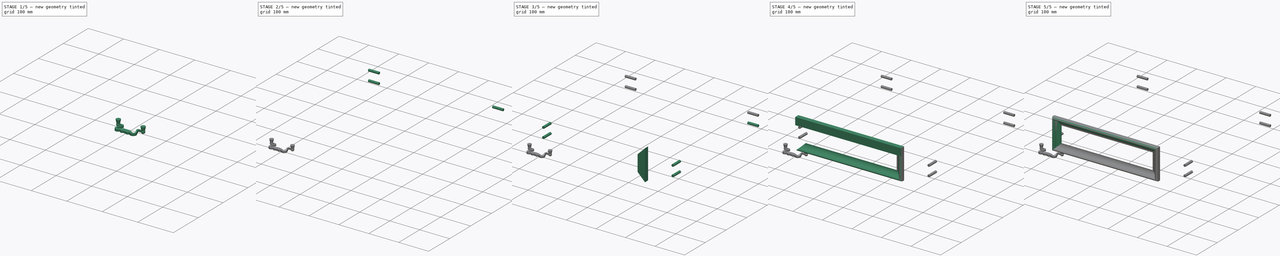
[diagram: build sequence overview — one tinted view per stage of 5, left to right]
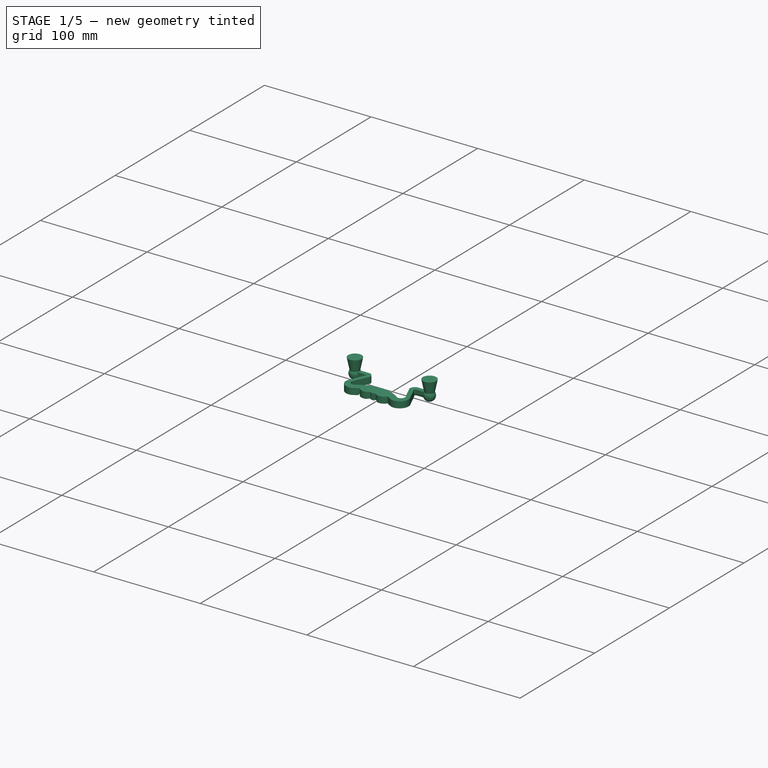
[diagram: stage 1 of 5 — iso view after this stage's code; geometry added in this stage tinted green]
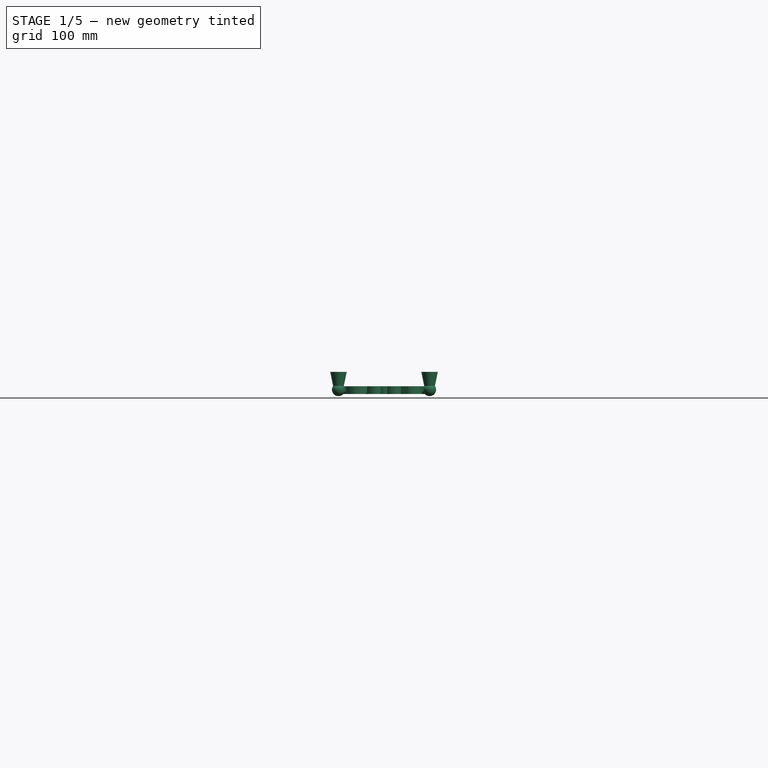
[diagram: stage 1 of 5 — front view after this stage's code; geometry added in this stage tinted green]
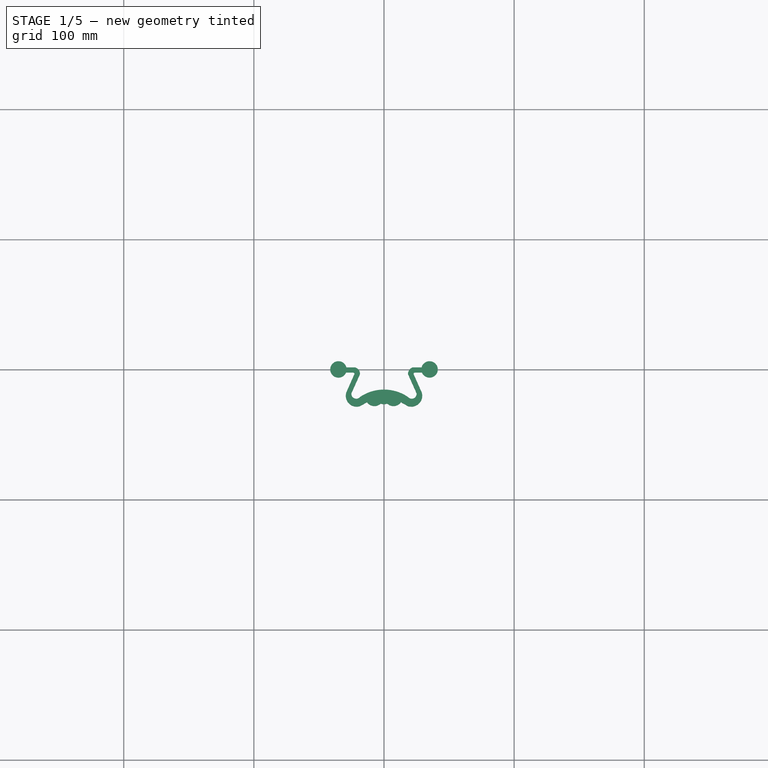
[diagram: stage 1 of 5 — top view after this stage's code; geometry added in this stage tinted green]
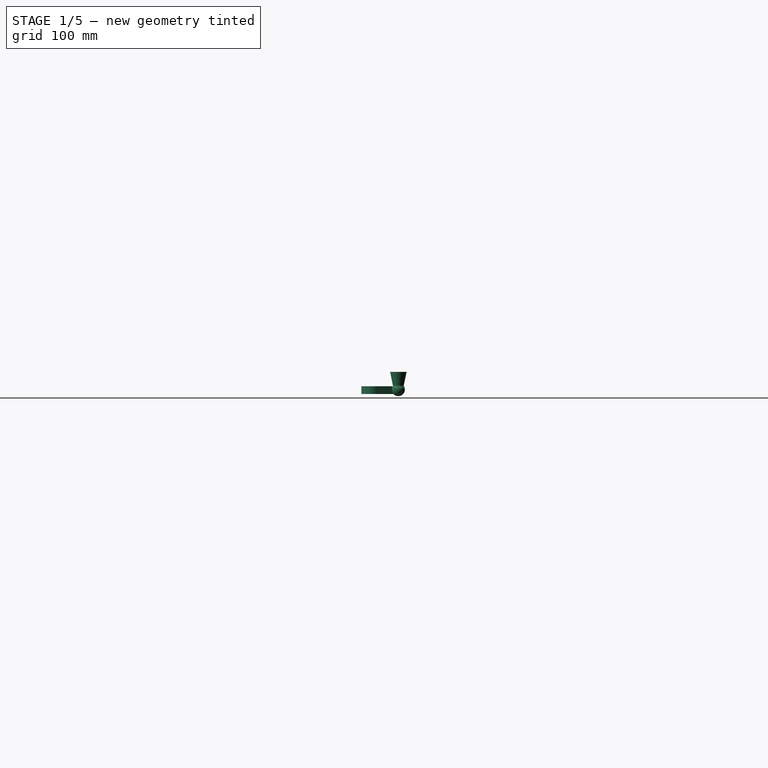
[diagram: stage 1 of 5 — right view after this stage's code; geometry added in this stage tinted green]
FCSTD DOCUMENT  (FreeCAD 1.1R20260325 (Git shallow))
Label: msf058
License: All rights reserved
LicenseURL: https://en.wikipedia.org/wiki/All_rights_reserved
objects: Sketcher::SketchObject×21, PartDesign::Pocket×15, App::Point×10, Part::Cylinder×8, Part::Box×5, PartDesign::Pad×5, PartDesign::Chamfer×5, PartDesign::Body×5, App::Part×5, App::LinkGroup×3, App::Link×3, Part::Cut×3, PartDesign::Mirrored×2, PartDesign::MultiTransform×2, PartDesign::Fillet×2, Spreadsheet::Sheet×1, PartDesign::Revolution×1
note: 155 computed .brp shape members not serialized (recipe doc carries the construction recipe); baked Part::Feature solids carry a one-line shape summary decoded from their .brp

FEATURE [Sketcher::SketchObject] Sketch
  ArcFitTolerance = 0
  ExternalTypes = [0]
  FullyConstrained = true
  MakeInternals = false
  MapMode = 5
  _ExternalGeoVersion = 0
  sketch-geometry (24):
    g0: LineSegment StartX=-32 StartY=1.78 StartZ=0 EndX=-32 EndY=-2.22 EndZ=0
    g1: LineSegment StartX=-32 StartY=-2.22 StartZ=0 EndX=-23.78 EndY=-2.22 EndZ=0
    g2: ArcOfCircle CenterX=-23.78 CenterY=-3.3 CenterZ=0 NormalX=0 NormalY=0 NormalZ=1 AngleXU=0 Radius=1.08 StartAngle=-1.8e-15 EndAngle=1.5708
    g3: LineSegment StartX=-22.7 StartY=-3.3 StartZ=0 EndX=-29 EndY=-17.5 EndZ=0
    g4: ArcOfCircle CenterX=-21 CenterY=-20 CenterZ=0 NormalX=0 NormalY=0 NormalZ=1 AngleXU=0 Radius=8.38153 StartAngle=2.83871 EndAngle=5.01527
    g5: LineSegment StartX=-18.5 StartY=-28 StartZ=0 EndX=-13 EndY=-24.9433 EndZ=0
    g6: ArcOfCircle CenterX=-7.3 CenterY=-21 CenterZ=0 NormalX=0 NormalY=0 NormalZ=1 AngleXU=0 Radius=6.93109 StartAngle=3.7468 EndAngle=5.47738
    g7: ArcOfCircle CenterX=9e-16 CenterY=-20 CenterZ=0 NormalX=0 NormalY=0 NormalZ=1 AngleXU=0 Radius=6.5 StartAngle=4.3176 EndAngle=5.10718
    g8: ArcOfCircle CenterX=7.3 CenterY=-21 CenterZ=0 NormalX=0 NormalY=0 NormalZ=1 AngleXU=0 Radius=6.93109 StartAngle=3.9474 EndAngle=5.67797
    g9: LineSegment StartX=13 StartY=-24.9433 StartZ=0 EndX=18.5 EndY=-28 EndZ=0
    g10: ArcOfCircle CenterX=21 CenterY=-20 CenterZ=0 NormalX=0 NormalY=0 NormalZ=1 AngleXU=0 Radius=8.38153 StartAngle=4.4095 EndAngle=6.58607
    g11: LineSegment StartX=29 StartY=-17.5 StartZ=0 EndX=22.7 EndY=-3.3 EndZ=0
    g12: ArcOfCircle CenterX=23.78 CenterY=-3.3 CenterZ=0 NormalX=0 NormalY=0 NormalZ=1 AngleXU=0 Radius=1.08 StartAngle=1.5708 EndAngle=3.14159
    g13: LineSegment StartX=23.78 StartY=-2.22 StartZ=0 EndX=32 EndY=-2.22 EndZ=0
    g14: LineSegment StartX=32 StartY=-2.22 StartZ=0 EndX=32 EndY=1.78 EndZ=0
    g15: LineSegment StartX=32 StartY=1.78 StartZ=0 EndX=22.1 EndY=1.78 EndZ=0
    g16: ArcOfCircle CenterX=23.78 CenterY=-3.3 CenterZ=0 NormalX=0 NormalY=0 NormalZ=1 AngleXU=0 Radius=5.35059 StartAngle=1.89018 EndAngle=3.14159
    g17: LineSegment StartX=18.4294 StartY=-3.3 StartZ=0 EndX=25 EndY=-18 EndZ=0
    g18: ArcOfCircle CenterX=21.3162 CenterY=-18.56 CenterZ=0 NormalX=0 NormalY=0 NormalZ=1 AngleXU=0 Radius=3.72617 StartAngle=3.85555 EndAngle=6.43405
    g19: ArcOfCircle CenterX=-2e-15 CenterY=-48 CenterZ=0 NormalX=0 NormalY=0 NormalZ=1 AngleXU=0 Radius=32.73 StartAngle=0.970083 EndAngle=2.17151
    g20: ArcOfCircle CenterX=-21.3162 CenterY=-18.56 CenterZ=0 NormalX=0 NormalY=0 NormalZ=1 AngleXU=0 Radius=3.72617 StartAngle=2.99073 EndAngle=5.56923
    g21: LineSegment StartX=-25 StartY=-18 StartZ=0 EndX=-18.4294 EndY=-3.3 EndZ=0
    g22: ArcOfCircle CenterX=-23.78 CenterY=-3.3 CenterZ=0 NormalX=0 NormalY=0 NormalZ=1 AngleXU=0 Radius=5.35059 StartAngle=0 EndAngle=1.25141
    g23: LineSegment StartX=-22.1 StartY=1.78 StartZ=0 EndX=-32 EndY=1.78 EndZ=0
  constraints (71):
    c: Vertical(g0)
    c: Coincident(g0,g1)
    c: Horizontal(g1)
    c: Coincident(g2,g1)
    c: Coincident(g3,g2)
    c: Coincident(g4,g3)
    c: Coincident(g5,g4)
    c: Coincident(g6,g5)
    c: Coincident(g7,g6)
    c: Coincident(g8,g7)
    c: Coincident(g9,g8)
    c: Coincident(g10,g9)
    c: Coincident(g11,g10)
    c: Coincident(g12,g11)
    c: Coincident(g13,g12)
    c: Horizontal(g13)
    c: Coincident(g14,g13)
    c: Vertical(g14)
    c: Coincident(g15,g14)
    c: Horizontal(g15)
    c: Coincident(g16,g15)
    c: Coincident(g17,g16)
    c: Coincident(g18,g17)
    c: Coincident(g19,g18)
    c: Coincident(g20,g19)
    c: Coincident(g21,g20)
    c: Coincident(g22,g21)
    c: Coincident(g23,g22)
    c: Coincident(g23,g0)
    c: Horizontal(g18,g19)
    c: Symmetric(g6,g8,g-2)
    c: Symmetric(g5,g8,g-2)
    c: Symmetric(g20,g17,g-2)
    c: Symmetric(g3,g10,g-2)
    c: Symmetric(g0,g14,g-2)
    c: Symmetric(g22,g15,g-2)
    c: Symmetric(g1,g12,g-2)
    c: Symmetric(g16,g21,g-2)
    c: Symmetric(g2,g11,g-2)
    c: Symmetric(g4,g9,g-2)
    c: Symmetric(g20,g18,g-2)
    c: DistanceX(g14) = 32
    c: DistanceX(g15,g15) = 9.9
    c: DistanceX(g-1,g9) = 18.5
    c: DistanceX(g6,g-1) = 2.5
    c: DistanceX(g6,g-1) = 7.3
    c: DistanceX(g5,g-1) = 13
    c: DistanceX(g19,g-1) = 18.5
    c: DistanceX(g3,g-1) = 29
    c: DistanceX(g20,g-1) = 25
    c: DistanceY(g7,g-1) = 26
    c: DistanceY(g7,g-1) = 20
    c: Horizontal(g7,g6)
    c: DistanceY(g6,g-1) = 21
    c: DistanceY(g4,g-1) = 20
    c: DistanceY(g20,g-1) = 18.56
    c: DistanceX(g4,g-1) = 21
    c: DistanceY(g10,g-1) = 17.5
    c: DistanceY(g17,g-1) = 18
    c: Horizontal(g10,g4)
    c: Coincident(g16,g12)
    c: Coincident(g22,g2)
    c: DistanceY(g2,g-1) = 3.3
    c: DistanceX(g2,g-1) = 23.78
    c: Vertical(g12,g12)
    c: Horizontal(g11,g12)
    c: DistanceY(g2,g1) = 1.08
    c: DistanceY(g14,g14) = 4
    c: Horizontal(g2,g21)
    c: DistanceY(g19,g-1) = 21
    c: DistanceY(g19,g-1) = 48
FEATURE [PartDesign::Pad] Pad
  Direction = (0,0,1)
  Length = 6
  Length2 = 10
  Profile = -> Sketch
  ReferenceAxis = -> Sketch [N_Axis]
  SideType = 0
  Suppressed = false
  Type = 0
  Type2 = 0
FEATURE [Sketcher::SketchObject] Sketch001
  ArcFitTolerance = 0
  AttachmentOffset = pos=(0,3,3) rot=(0,0,1;4.71239rad)
  ExternalTypes = [0]
  FullyConstrained = true
  MakeInternals = false
  MapMode = 5
  Placement = pos=(35,0,3) rot=(0,1,0;1.5708rad)
  _ExternalGeoVersion = 0
  sketch-geometry (4):
    g0: ArcOfCircle CenterX=-0.404329 CenterY=0 CenterZ=0 NormalX=0 NormalY=0 NormalZ=1 AngleXU=0 Radius=5.02433 StartAngle=4.10302 EndAngle=6.28319
    g1: LineSegment StartX=-3.28 StartY=-4.12 StartZ=0 EndX=-14.06 EndY=-6.34 EndZ=0
    g2: LineSegment StartX=-14.06 StartY=-6.34 StartZ=0 EndX=-14.06 EndY=0 EndZ=0
    g3: LineSegment StartX=-14.06 StartY=0 StartZ=0 EndX=4.62 EndY=-1.2e-15 EndZ=0
  constraints (13):
    c: PointOnObject(g0,g-1)
    c: Coincident(g1,g0)
    c: Coincident(g2,g1)
    c: PointOnObject(g2,g-1)
    c: Vertical(g2)
    c: Coincident(g3,g2)
    c: Coincident(g3,g0)
    c: DistanceY(g2,g2) = 6.34
    c: PointOnObject(g0,g3)
    c: DistanceX(g-1,g0) = 4.62
    c: DistanceX(g0,g-1) = 3.28
    c: DistanceY(g0,g-1) = 4.12
    c: DistanceX(g1,g-1) = 14.06
FEATURE [PartDesign::Revolution] Revolution
  Angle = 360
  Angle2 = 0
  Axis = (2e-16,0,-1)
  Base = (35,0,3)
  BaseFeature = -> Pad
  FuseOrder = 0
  Profile = -> Sketch001
  ReferenceAxis = -> Sketch001 [H_Axis]
  Reversed = true
  Suppressed = false
  Type = 0
FEATURE [PartDesign::Mirrored] Mirrored
  MirrorPlane = -> YZ_Plane001
  Suppressed = false
  TransformMode = 0
FEATURE [PartDesign::MultiTransform] MultiTransform
  BaseFeature = -> Revolution
  Originals = -> [Revolution]
  Suppressed = false
  TransformMode = 0
  Transformations = -> [Mirrored]
FEATURE [Sketcher::SketchObject] Sketch002
  ArcFitTolerance = 0
  ExternalTypes = [0]
  FullyConstrained = false
  MakeInternals = false
  MapMode = 5
  Placement = pos=(0,0,0) rot=(1,0,0;3.14159rad)
  _ExternalGeoVersion = 0
  sketch-geometry (6):
    g0: ArcOfCircle CenterX=8.37325 CenterY=23.2848 CenterZ=0 NormalX=0 NormalY=0 NormalZ=1 AngleXU=0 Radius=5.42921 StartAngle=4.33984 EndAngle=6.97405
    g1: ArcOfCircle CenterX=7.9611 CenterY=22.3638 CenterZ=0 NormalX=0 NormalY=0 NormalZ=1 AngleXU=0 Radius=4.42164 StartAngle=0.796764 EndAngle=4.35084
    g2: ArcOfCircle CenterX=8.91823 CenterY=22.7616 CenterZ=0 NormalX=0 NormalY=0 NormalZ=1 AngleXU=0 Radius=2.4556 StartAngle=0.183027 EndAngle=3.90789
    g3: ArcOfCircle CenterX=9.44753 CenterY=23.8657 CenterZ=0 NormalX=0 NormalY=0 NormalZ=1 AngleXU=0 Radius=3.62796 StartAngle=4.02624 EndAngle=7.06929
    g4: LineSegment StartX=11.3328 StartY=23.2085 StartZ=0 EndX=11.0519 EndY=25.5257 EndZ=0
    g5: LineSegment StartX=12.0111 StartY=26.4328 StartZ=0 EndX=12.5575 EndY=26.7442 EndZ=0
  constraints (6):
    c: Coincident(g1,g0)
    c: Coincident(g3,g2)
    c: Coincident(g4,g2)
    c: Coincident(g4,g1)
    c: Coincident(g5,g3)
    c: Coincident(g5,g0)
FEATURE [PartDesign::Pocket] Pocket
  BaseFeature = -> MultiTransform
  Direction = (0,1e-16,1)
  Length = 1
  Length2 = 5
  Profile = -> Sketch002
  ReferenceAxis = -> Sketch002 [N_Axis]
  SideType = 0
  Suppressed = false
  Type = 0
  Type2 = 0
FEATURE [Sketcher::SketchObject] Sketch003
  ArcFitTolerance = 0
  ExternalTypes = [0]
  FullyConstrained = false
  MakeInternals = false
  MapMode = 5
  Placement = pos=(0,0,0) rot=(1,0,0;3.14159rad)
  _ExternalGeoVersion = 0
  sketch-geometry (4):
    g0: ArcOfCircle CenterX=8.78863 CenterY=22.2095 CenterZ=0 NormalX=0 NormalY=0 NormalZ=1 AngleXU=0 Radius=6.37434 StartAngle=1.16895 EndAngle=5.27179
    g1: ArcOfCircle CenterX=8.78863 CenterY=22.2095 CenterZ=0 NormalX=0 NormalY=0 NormalZ=1 AngleXU=0 Radius=7.27003 StartAngle=1.46029 EndAngle=5.028
    g2: LineSegment StartX=9.59035 StartY=29.4352 StartZ=0 EndX=11.2818 EndY=28.0761 EndZ=0
    g3: LineSegment StartX=11.0452 StartY=15.2986 StartZ=0 EndX=12.1714 EndY=16.8068 EndZ=0
  constraints (5):
    c: Coincident(g2,g1)
    c: Coincident(g2,g0)
    c: Coincident(g3,g1)
    c: Coincident(g3,g0)
    c: Coincident(g0,g1)
FEATURE [PartDesign::Pocket] Pocket001
  BaseFeature = -> Pocket
  Direction = (0,1e-16,1)
  Length = 1
  Length2 = 5
  Profile = -> Sketch003
  ReferenceAxis = -> Sketch003 [N_Axis]
  SideType = 0
  Suppressed = false
  Type = 0
  Type2 = 0
FEATURE [Sketcher::SketchObject] Sketch004
  ArcFitTolerance = 0
  ExternalTypes = [0]
  FullyConstrained = false
  MakeInternals = false
  MapMode = 5
  Placement = pos=(0,0,0) rot=(1,0,0;3.14159rad)
  _ExternalGeoVersion = 0
  sketch-geometry (4):
    g0: LineSegment StartX=3.03254 StartY=13.6466 StartZ=0 EndX=0 EndY=19.9742 EndZ=0
    g1: LineSegment StartX=2.14295 StartY=13.4233 StartZ=0 EndX=0 EndY=18.4771 EndZ=0
    g2: LineSegment StartX=0 StartY=19.9742 StartZ=0 EndX=0 EndY=18.4771 EndZ=0
    g3: LineSegment StartX=2.14295 StartY=13.4233 StartZ=0 EndX=3.03254 EndY=13.6466 EndZ=0
  constraints (6):
    c: PointOnObject(g0,g-2)
    c: PointOnObject(g1,g-2)
    c: Coincident(g2,g0)
    c: Coincident(g2,g1)
    c: Coincident(g3,g1)
    c: Coincident(g3,g0)
FEATURE [PartDesign::Pocket] Pocket002
  BaseFeature = -> Pocket001
  Direction = (0,1e-16,1)
  Length = 1
  Length2 = 5
  Profile = -> Sketch004
  ReferenceAxis = -> Sketch004 [N_Axis]
  SideType = 0
  Suppressed = false
  Type = 0
  Type2 = 0
FEATURE [PartDesign::Mirrored] Mirrored001
  MirrorPlane = -> YZ_Plane001
  Suppressed = false
  TransformMode = 0
FEATURE [PartDesign::MultiTransform] MultiTransform001
  BaseFeature = -> Pocket002
  Originals = -> [Pocket,Pocket001,Pocket002]
  Suppressed = false
  TransformMode = 0
  Transformations = -> [Mirrored001]
FEATURE [PartDesign::Fillet] Fillet
  Base = -> MultiTransform001 [Edge104,Edge17,Edge4,Edge98]
  BaseFeature = -> MultiTransform001
  Radius = 3
  SupportTransform = false
  Suppressed = false
  UseAllEdges = false
FEATURE [PartDesign::Chamfer] Chamfer
  Angle = 45
  Base = -> Fillet [Edge101,Edge15,Edge129,Edge135,Edge143,Edge140,Edge132,Edge131]
  BaseFeature = -> Fillet
  ChamferType = 0
  FlipDirection = false
  Size = 0.8
  Size2 = 1
  SupportTransform = false
  Suppressed = false
  UseAllEdges = false
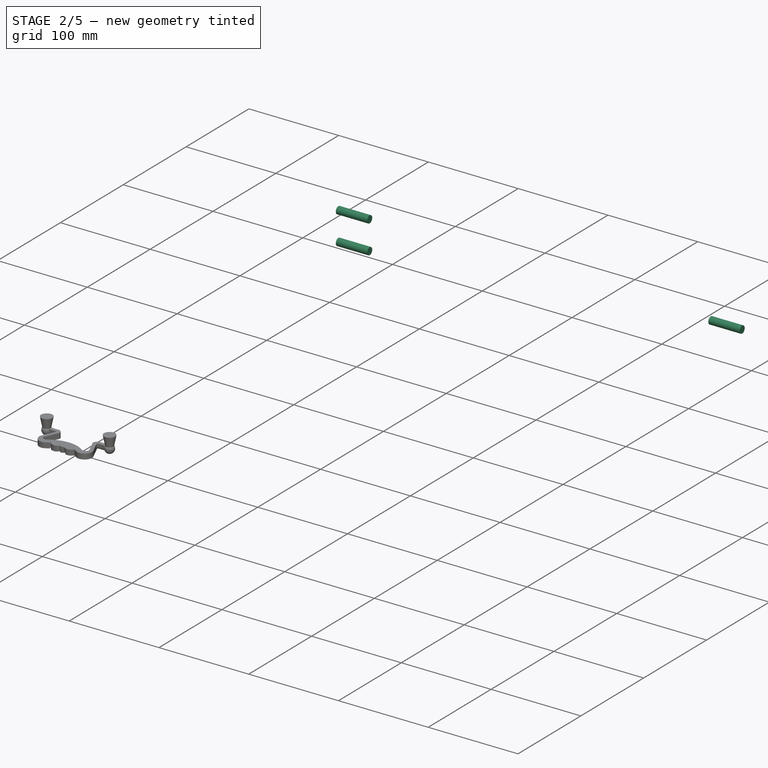
[diagram: stage 2 of 5 — iso view after this stage's code; geometry added in this stage tinted green]
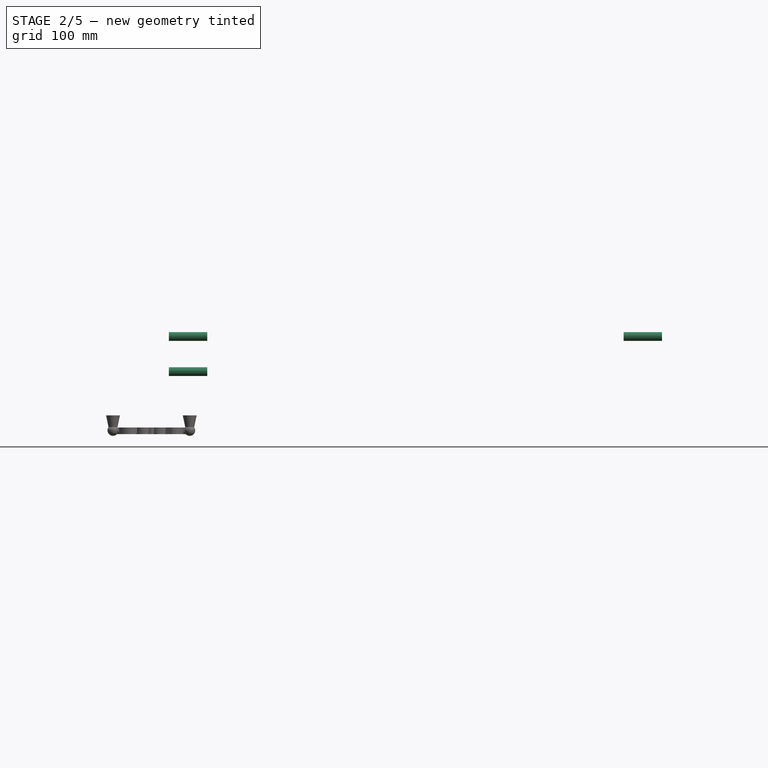
[diagram: stage 2 of 5 — front view after this stage's code; geometry added in this stage tinted green]
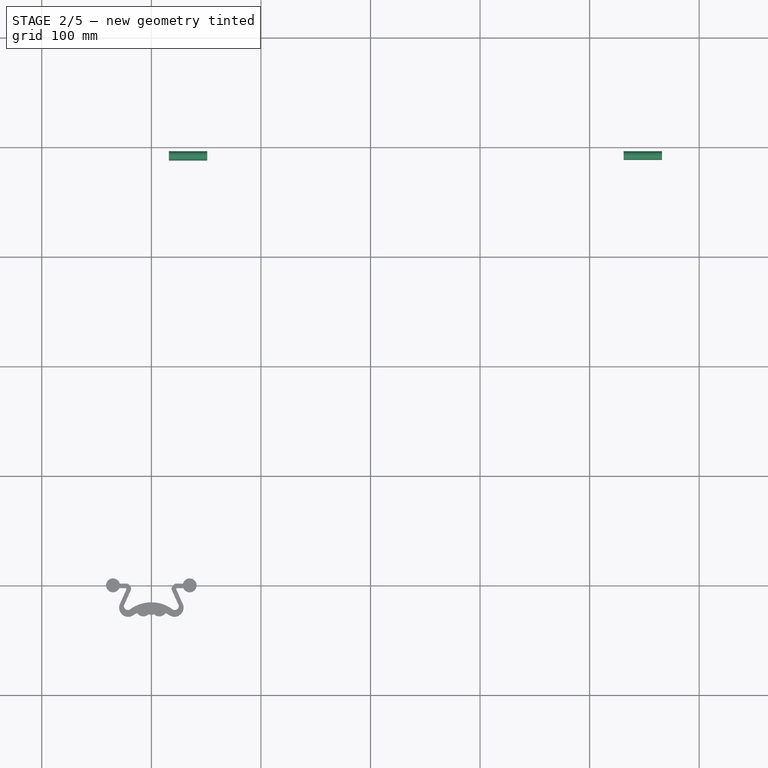
[diagram: stage 2 of 5 — top view after this stage's code; geometry added in this stage tinted green]
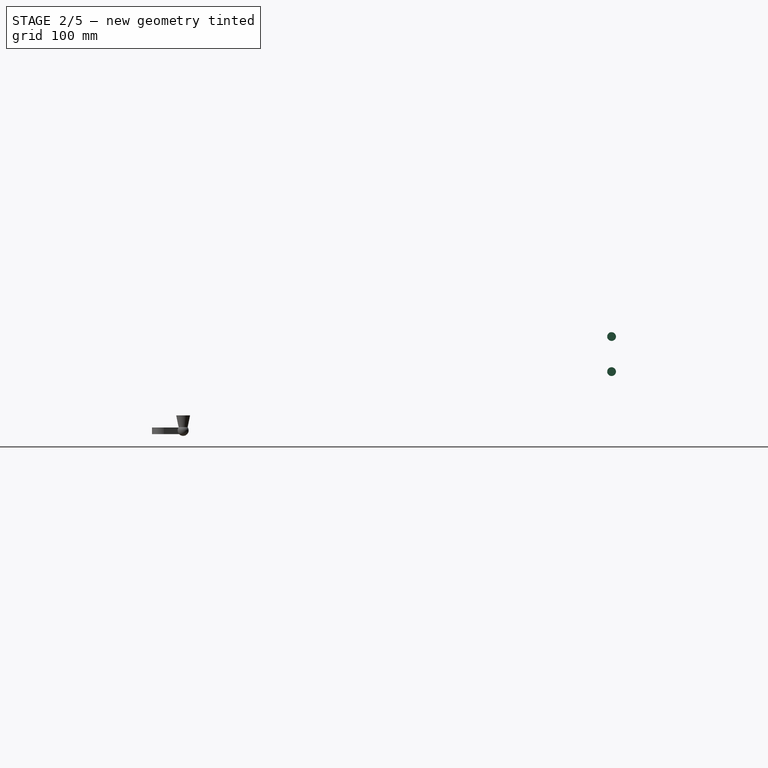
[diagram: stage 2 of 5 — right view after this stage's code; geometry added in this stage tinted green]
FEATURE [Part::Box] DrawerLeft  label="Drawer Left"
  AttacherType = Attacher::AttachEngine3D
  Height = 107
  Length = 18
  Placement = pos=(13,0,13) rot=(0,0,1;0rad)
  Width = 400
  expr: Width = <<settings>>.sizeY
FEATURE [Part::Box] DrawerBack  label="Drawer Back"
  AttacherType = Attacher::AttachEngine3D
  Height = 107
  Length = 420
  Placement = pos=(31,382,13) rot=(0,0,1;0rad)
  Width = 18
  expr: .Placement.Base.y = DrawerLeft.Shape.Faces[3].CenterOfMass.y - 18
  expr: Length = DrawerFrontOutside.Shape.Edges[11].Length - 80
FEATURE [Part::Box] DrawerBottom  label="Drawer Bottom HDF"
  AttacherType = Attacher::AttachEngine3D
  Height = 3
  Length = 438
  Placement = pos=(22,0,22) rot=(0,0,1;0rad)
  Width = 391
  expr: Length = DrawerFrontOutside.Shape.Edges[9].Length - 62
  expr: Width = DrawerLeft.Shape.Edges[5].Length - 9
FEATURE [Part::Box] DrawerFrontOutside  label="Drawer Front Outside"
  AttacherType = Attacher::AttachEngine3D
  Height = 164
  Length = 500
  Placement = pos=(-9,-18,-7) rot=(0,0,1;0rad)
  Width = 18
  expr: Length = <<settings>>.sizeX
FEATURE [App::Link] Link001  label="Knife, Drawer Bottom HDF 001"
  BOM = false
  LinkedObject = -> LinkGroup002
FEATURE [Part::Cut] Cut001  label="Cut, Drawer Back "
  Base = -> DrawerBack
  Tool = -> Link001
FEATURE [Part::Cylinder] Dowel005  label="Dowel 8 x 35 mm 005"
  Angle = 360
  AttacherType = Attacher::AttachEngine3D
  FirstAngle = 0
  Height = 35
  Placement = pos=(431,391,89) rot=(0,1,0;1.5708rad)
  Radius = 4
  SecondAngle = 0
  expr: .Placement.Base.x = DrawerBack.Shape.Faces[1].CenterOfMass.x - 20
  expr: .Placement.Base.y = DrawerBack.Shape.Faces[1].CenterOfMass.y - 0
  expr: .Placement.Base.z = DrawerBack.Shape.Faces[1].CenterOfMass.z + 22.5
FEATURE [Part::Cylinder] Dowel006  label="Dowel 8 x 35 mm 006"
  Angle = 360
  AttacherType = Attacher::AttachEngine3D
  FirstAngle = 0
  Height = 35
  Placement = pos=(51,391,57) rot=(0,-1,0;1.5708rad)
  Radius = 4
  SecondAngle = 0
  expr: .Placement.Base.x = Cut001.Shape.Faces[0].CenterOfMass.x + 20
  expr: .Placement.Base.y = Cut001.Shape.Faces[0].CenterOfMass.y - 0.0639810426540066
  expr: .Placement.Base.z = Cut001.Shape.Faces[0].CenterOfMass.z - 10.1113744075829
FEATURE [Part::Cylinder] Dowel007  label="Dowel 8 x 35 mm 007"
  Angle = 360
  AttacherType = Attacher::AttachEngine3D
  FirstAngle = 0
  Height = 35
  Placement = pos=(51,391,89) rot=(0,-1,0;1.5708rad)
  Radius = 4
  SecondAngle = 0
  expr: .Placement.Base.x = Cut001.Shape.Faces[0].CenterOfMass.x + 20
  expr: .Placement.Base.y = Cut001.Shape.Faces[0].CenterOfMass.y - 0.0639810426540066
  expr: .Placement.Base.z = Cut001.Shape.Faces[0].CenterOfMass.z + 21.8886255924171
FEATURE [PartDesign::Fillet] Fillet001
  Base = -> Chamfer [Edge149,Edge12]
  BaseFeature = -> Chamfer
  Radius = 0.2
  SupportTransform = false
  Suppressed = false
  UseAllEdges = false
FEATURE [PartDesign::Body] Body
  AllowCompound = true
  Group = -> [Sketch,Pad,Sketch001,Revolution,MultiTransform,Mirrored,Sketch002,Pocket,Sketch003,Pocket001,Sketch004,Pocket002,MultiTransform001,Mirrored001,Fillet,Chamfer,Fillet001]
  Origin = -> Origin001
  Placement = pos=(241,-34.9822,76.0422) rot=(0,0.707107,0.707107;3.14159rad)
  Tip = -> Fillet001
FEATURE [App::Part] Part  label="Handle"
  Group = -> [Body]
  Origin = -> Origin
  expr: .Placement.Base.x = DrawerFrontOutside.Shape.Faces[2].CenterOfMass.x - 241
  expr: .Placement.Base.y = DrawerFrontOutside.Shape.Faces[2].CenterOfMass.y + 18
  expr: .Placement.Base.z = DrawerFrontOutside.Shape.Faces[2].CenterOfMass.z - 75
FEATURE [App::LinkGroup] LinkGroup  label="Drawer, link this"
  ElementList = -> [DrawerLeft,DrawerRight,DrawerBack,DrawerFrontOutside,Part001,Part002,Part003,Part004,LinkGroup002,Cut,Cut001,Cut002,Dowel,Dowel001,Dowel002,Dowel003,Dowel004,Dowel005,Dowel006,Dowel007,Part]
  LinkMode = 0
FEATURE [App::LinkGroup] LinkGroup001  label="Drawer, hide this"
  ElementList = -> [LinkGroup,Spreadsheet]
  LinkMode = 0
FEATURE [App::Point] Origin010  label="Origin"
  Role = Origin
FEATURE [App::Point] Origin011  label="Origin"
  Role = Origin
FEATURE [App::Point] Origin012  label="Origin"
  Role = Origin
FEATURE [App::Point] Origin013  label="Origin"
  Role = Origin
FEATURE [App::Point] Origin014  label="Origin"
  Role = Origin
FEATURE [App::Point] Origin015  label="Origin"
  Role = Origin
FEATURE [App::Point] Origin016  label="Origin"
  Role = Origin
FEATURE [App::Point] Origin017  label="Origin"
  Role = Origin
FEATURE [App::Point] Origin018  label="Origin"
  Role = Origin
FEATURE [App::Point] Origin019  label="Origin"
  Role = Origin
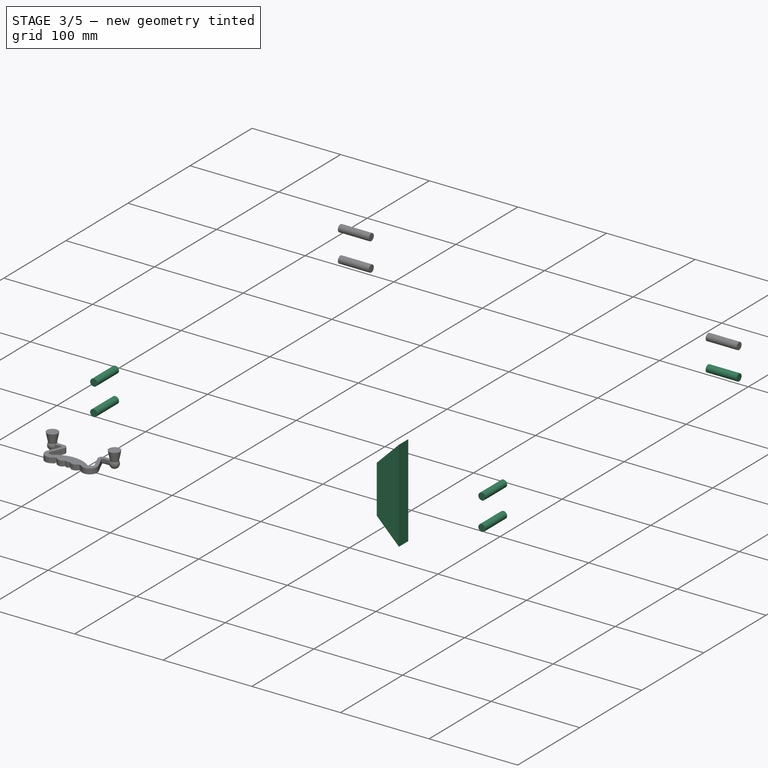
[diagram: stage 3 of 5 — iso view after this stage's code; geometry added in this stage tinted green]
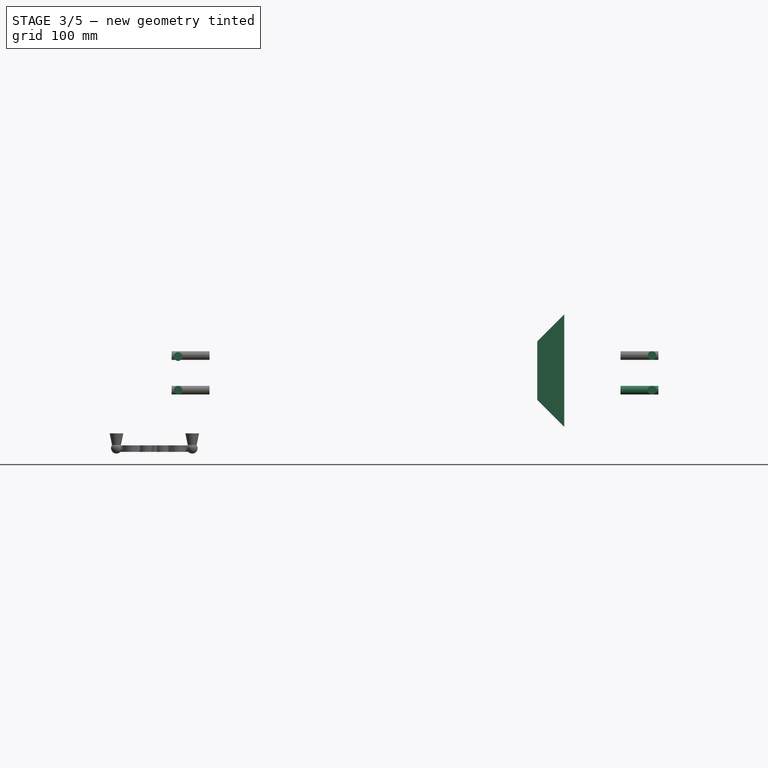
[diagram: stage 3 of 5 — front view after this stage's code; geometry added in this stage tinted green]
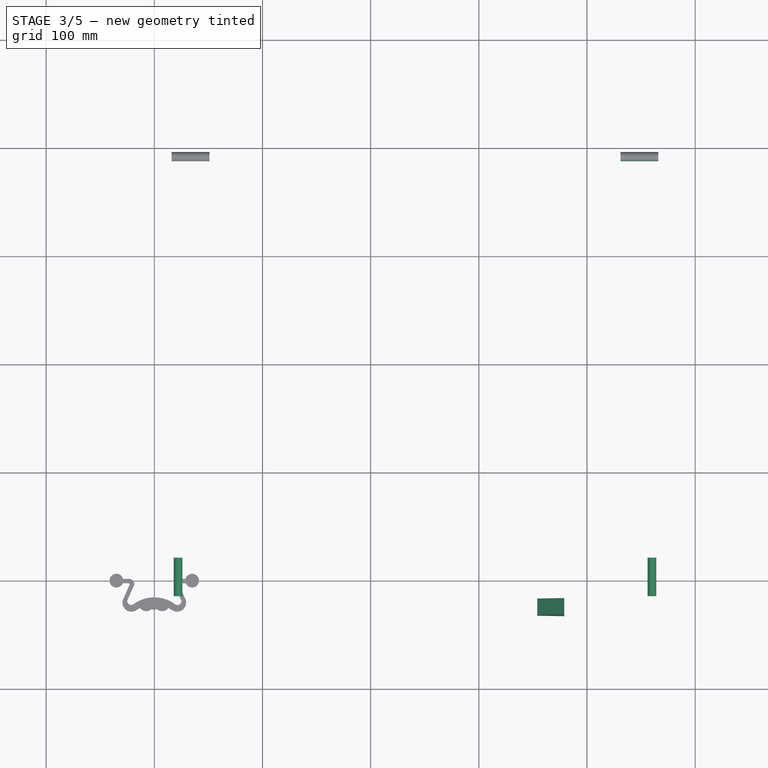
[diagram: stage 3 of 5 — top view after this stage's code; geometry added in this stage tinted green]
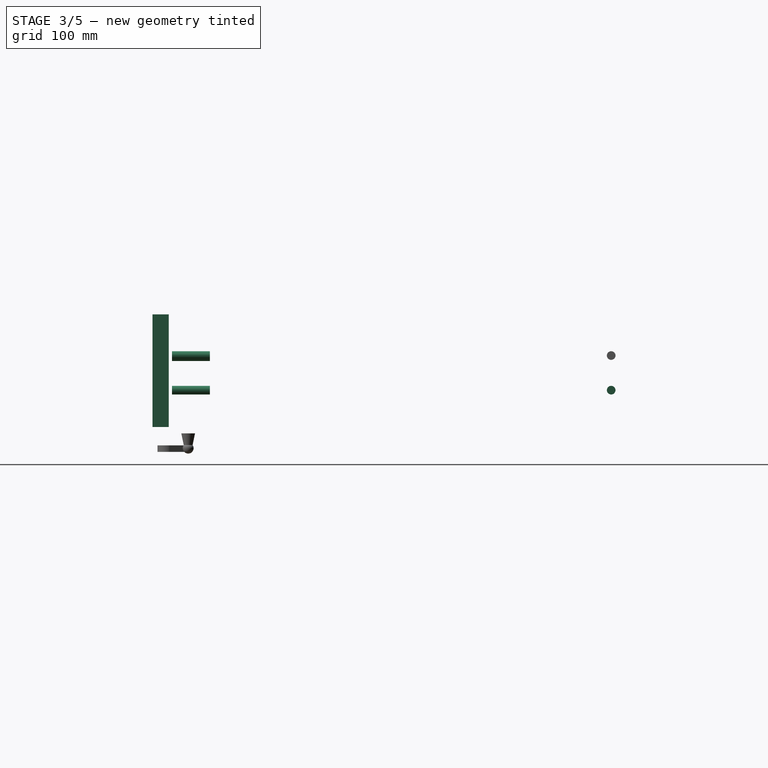
[diagram: stage 3 of 5 — right view after this stage's code; geometry added in this stage tinted green]
FEATURE [Part::Box] DrawerRight  label="Drawer Right"
  AttacherType = Attacher::AttachEngine3D
  Height = 107
  Length = 18
  Placement = pos=(451,0,13) rot=(0,0,1;0rad)
  Width = 400
  expr: .Placement.Base.x = DrawerBottom.Shape.Faces[1].CenterOfMass.x - 9
  expr: Width = DrawerLeft.Shape.Edges[5].Length - 0
FEATURE [Sketcher::SketchObject] Sketch007  label="Pattern, Frame002"
  ArcFitTolerance = 0
  AttachmentOffset = pos=(354,23,33) rot=(0,1,0;0rad)
  ExternalTypes = [0]
  FullyConstrained = true
  MakeInternals = false
  MapMode = 5
  Placement = pos=(354,-33,23) rot=(1,0,0;1.5708rad)
  _ExternalGeoVersion = 0
  sketch-geometry (4):
    g0: LineSegment StartX=0 StartY=104 StartZ=0 EndX=25 EndY=104 EndZ=0
    g1: LineSegment StartX=25 StartY=104 StartZ=0 EndX=25 EndY=0 EndZ=0
    g2: LineSegment StartX=25 StartY=0 StartZ=0 EndX=0 EndY=0 EndZ=0
    g3: LineSegment StartX=0 StartY=0 StartZ=0 EndX=0 EndY=104 EndZ=0
  constraints (11):
    c: Coincident(g0,g1)
    c: Coincident(g1,g2)
    c: Coincident(g2,g3)
    c: Coincident(g3,g0)
    c: Horizontal(g0)
    c: Horizontal(g2)
    c: Vertical(g1)
    c: Vertical(g3)
    c: Coincident(g2,g-1)
    c: DistanceX(g0,g0) = 25  'SizeX'
    c: DistanceY(g3,g3) = 104  'SizeY'
FEATURE [PartDesign::Pad] Pad003  label="Frame002"
  Direction = (0,-1,2e-16)
  Length = 15
  Length2 = 10
  Placement = pos=(354,-33,23) rot=(1,0,0;1.5708rad)
  Profile = -> Sketch007
  Reversed = true
  SideType = 0
  Suppressed = false
  Type = 0
  Type2 = 0
FEATURE [PartDesign::Chamfer] Frame45Cut002
  Angle = 45
  Base = -> Pad003 [Edge1,Edge8]
  BaseFeature = -> Pad003
  ChamferType = 0
  FlipDirection = false
  Placement = pos=(354,-33,23) rot=(1,0,0;1.5708rad)
  Size = 24.99
  Size2 = 1
  SupportTransform = false
  Suppressed = false
  UseAllEdges = false
FEATURE [PartDesign::Body] Body003  label="Body, Frame002"
  AllowCompound = true
  Group = -> [Sketch007,Pad003,Frame45Cut002,routerPattern003,router003,routerPattern007,router007,routerPattern011,router011]
  Origin = -> Origin007
  Tip = -> router011
FEATURE [App::Part] Part003  label="Decoration Right"
  Group = -> [Body003]
  Origin = -> Origin006
  Placement = pos=(41,0,0) rot=(0,0,1;0rad)
  expr: .Placement.Base.x = DrawerFrontOutside.Shape.Faces[2].CenterOfMass.x - 200
  expr: .Placement.Base.y = DrawerFrontOutside.Shape.Faces[2].CenterOfMass.y + 18
  expr: .Placement.Base.z = DrawerFrontOutside.Shape.Faces[2].CenterOfMass.z - 75
FEATURE [Spreadsheet::Sheet] Spreadsheet  label="settings"
  cells = A1='Settings; A2='Front width (size along X); B2(sizeX)=500; A3='Left side depth (size along Y); B3(sizeY)==400 mm; A5='Note; A6='Front width (size along X) is linked via magicGlue to drawer size X. 'Left side size (size along Y) is linked via magicGlue to drawer size Y. The bottom part of the drawer is inside LinkGroup container to get parametric cut, so if you move the bottom up and down the cut will follow the bottom position.
FEATURE [App::LinkGroup] LinkGroup002  label="Container, Drawer Bottom HDF "
  ElementList = -> [DrawerBottom]
  LinkMode = 0
FEATURE [App::Link] Link  label="Knife, Drawer Bottom HDF "
  BOM = false
  LinkedObject = -> LinkGroup002
FEATURE [Part::Cut] Cut  label="Cut, Drawer Left "
  Base = -> DrawerLeft
  Tool = -> Link
FEATURE [App::Link] Link002  label="Knife, Drawer Bottom HDF 002"
  BOM = false
  LinkedObject = -> LinkGroup002
FEATURE [Part::Cut] Cut002  label="Cut, Drawer Right "
  Base = -> DrawerRight
  Tool = -> Link002
FEATURE [Part::Cylinder] Dowel  label="Dowel 8 x 35 mm "
  Angle = 360
  AttacherType = Attacher::AttachEngine3D
  FirstAngle = 0
  Height = 35
  Placement = pos=(22,20,88) rot=(1,0,0;1.5708rad)
  Radius = 4
  SecondAngle = 0
  expr: .Placement.Base.x = Cut.Shape.Faces[1].CenterOfMass.x + 0.0639810426540279
  expr: .Placement.Base.y = Cut.Shape.Faces[1].CenterOfMass.y + 20
  expr: .Placement.Base.z = Cut.Shape.Faces[1].CenterOfMass.z + 20.8886255924171
FEATURE [Part::Cylinder] Dowel001  label="Dowel 8 x 35 mm 001"
  Angle = 360
  AttacherType = Attacher::AttachEngine3D
  FirstAngle = 0
  Height = 35
  Placement = pos=(22,20,57) rot=(1,0,0;1.5708rad)
  Radius = 4
  SecondAngle = 0
  expr: .Placement.Base.x = Cut.Shape.Faces[1].CenterOfMass.x + 0.0639810426540279
  expr: .Placement.Base.y = Cut.Shape.Faces[1].CenterOfMass.y + 20
  expr: .Placement.Base.z = Cut.Shape.Faces[1].CenterOfMass.z - 10.1113744075829
FEATURE [Part::Cylinder] Dowel002  label="Dowel 8 x 35 mm 002"
  Angle = 360
  AttacherType = Attacher::AttachEngine3D
  FirstAngle = 0
  Height = 35
  Placement = pos=(460,20,57) rot=(1,0,0;1.5708rad)
  Radius = 4
  SecondAngle = 0
  expr: .Placement.Base.x = Cut002.Shape.Faces[8].CenterOfMass.x - 9
  expr: .Placement.Base.y = Cut002.Shape.Faces[1].CenterOfMass.y + 20
  expr: .Placement.Base.z = Cut002.Shape.Faces[5].CenterOfMass.z - 63
FEATURE [Part::Cylinder] Dowel003  label="Dowel 8 x 35 mm 003"
  Angle = 360
  AttacherType = Attacher::AttachEngine3D
  FirstAngle = 0
  Height = 35
  Placement = pos=(460,20,89) rot=(1,0,0;1.5708rad)
  Radius = 4
  SecondAngle = 0
  expr: .Placement.Base.x = Cut002.Shape.Faces[8].CenterOfMass.x - 9
  expr: .Placement.Base.y = Cut002.Shape.Faces[1].CenterOfMass.y + 20
  expr: .Placement.Base.z = Cut002.Shape.Faces[5].CenterOfMass.z - 31
FEATURE [Part::Cylinder] Dowel004  label="Dowel 8 x 35 mm 004"
  Angle = 360
  AttacherType = Attacher::AttachEngine3D
  FirstAngle = 0
  Height = 35
  Placement = pos=(431,391,57) rot=(0,1,0;1.5708rad)
  Radius = 4
  SecondAngle = 0
  expr: .Placement.Base.x = DrawerBack.Shape.Faces[1].CenterOfMass.x - 20
  expr: .Placement.Base.y = DrawerBack.Shape.Faces[1].CenterOfMass.y - 0
  expr: .Placement.Base.z = DrawerBack.Shape.Faces[1].CenterOfMass.z - 9.49999999999997
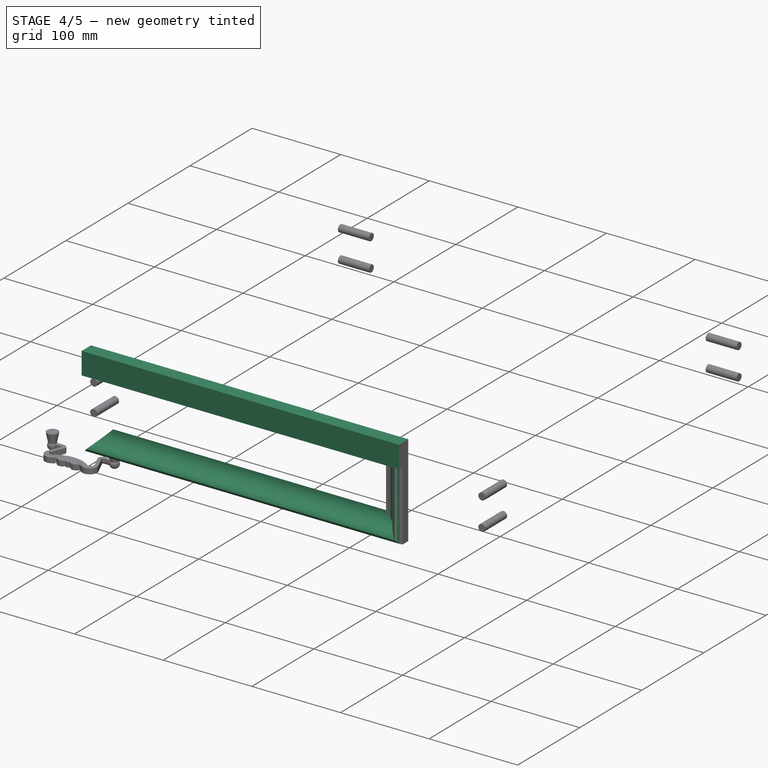
[diagram: stage 4 of 5 — iso view after this stage's code; geometry added in this stage tinted green]
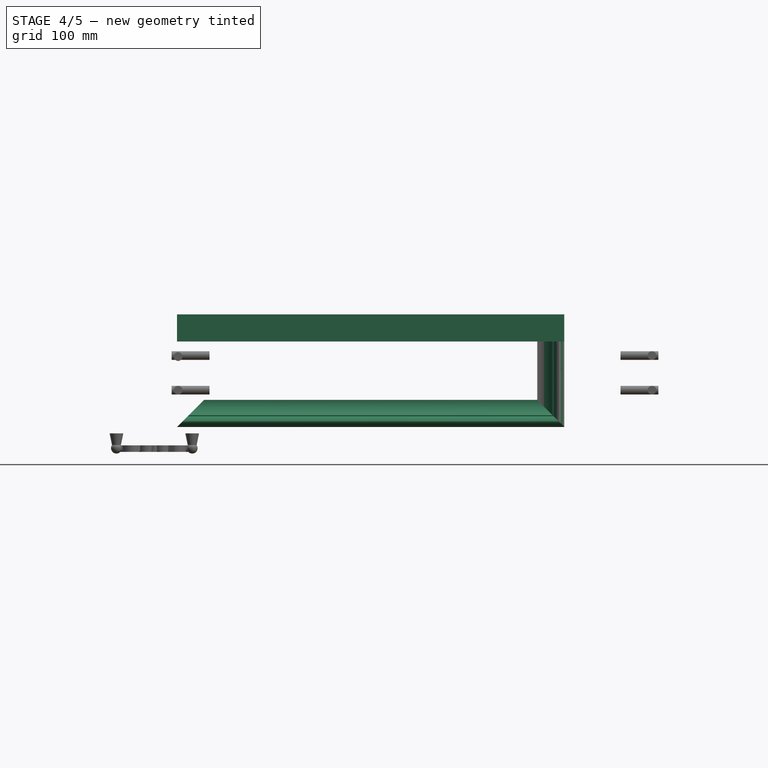
[diagram: stage 4 of 5 — front view after this stage's code; geometry added in this stage tinted green]
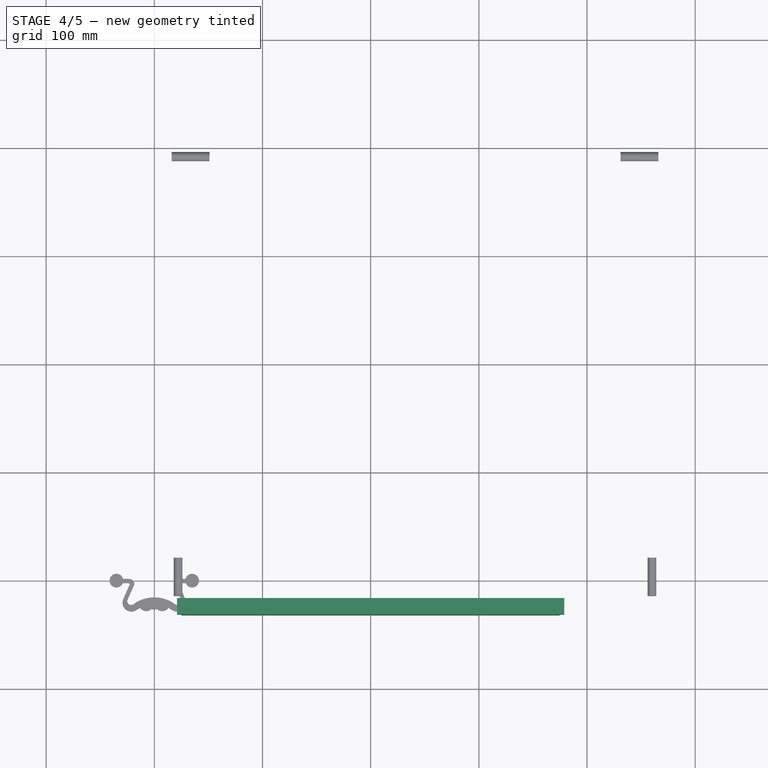
[diagram: stage 4 of 5 — top view after this stage's code; geometry added in this stage tinted green]
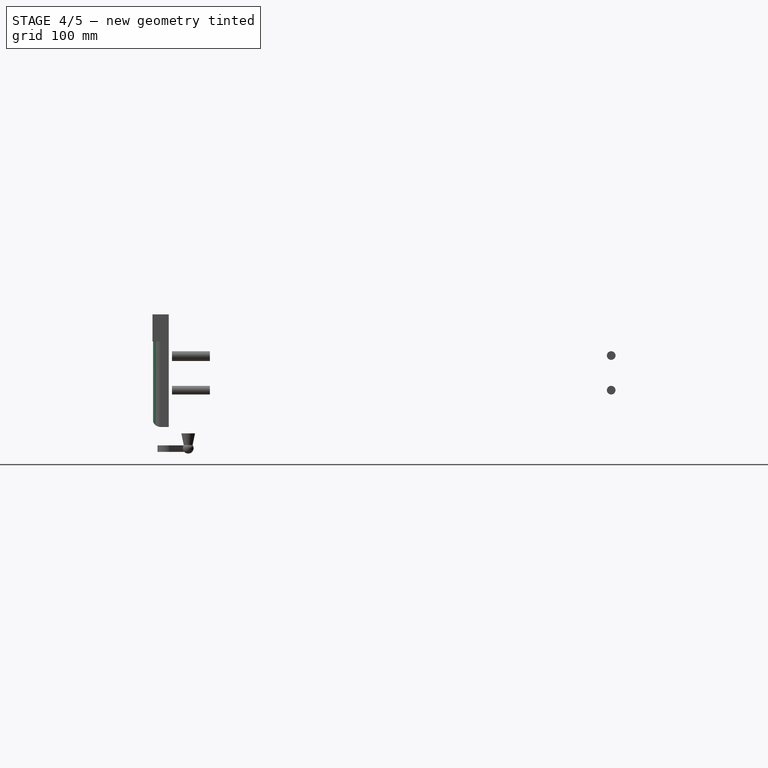
[diagram: stage 4 of 5 — right view after this stage's code; geometry added in this stage tinted green]
FEATURE [Sketcher::SketchObject] Sketch006  label="Pattern, Frame001"
  ArcFitTolerance = 0
  AttachmentOffset = pos=(21,102,33) rot=(0,1,0;0rad)
  ExternalTypes = [0]
  FullyConstrained = true
  MakeInternals = false
  MapMode = 5
  Placement = pos=(21,-33,102) rot=(1,0,0;1.5708rad)
  _ExternalGeoVersion = 0
  sketch-geometry (4):
    g0: LineSegment StartX=0 StartY=25 StartZ=0 EndX=358 EndY=25 EndZ=0
    g1: LineSegment StartX=358 StartY=25 StartZ=0 EndX=358 EndY=0 EndZ=0
    g2: LineSegment StartX=358 StartY=0 StartZ=0 EndX=0 EndY=0 EndZ=0
    g3: LineSegment StartX=0 StartY=0 StartZ=0 EndX=0 EndY=25 EndZ=0
  constraints (11):
    c: Coincident(g0,g1)
    c: Coincident(g1,g2)
    c: Coincident(g2,g3)
    c: Coincident(g3,g0)
    c: Horizontal(g0)
    c: Horizontal(g2)
    c: Vertical(g1)
    c: Vertical(g3)
    c: Coincident(g2,g-1)
    c: DistanceX(g0,g0) = 358  'SizeX'
    c: DistanceY(g3,g3) = 25  'SizeY'
FEATURE [PartDesign::Pad] Pad002  label="Frame001"
  Direction = (0,-1,2e-16)
  Length = 15
  Length2 = 10
  Placement = pos=(21,-33,102) rot=(1,0,0;1.5708rad)
  Profile = -> Sketch006
  Reversed = true
  SideType = 0
  Suppressed = false
  Type = 0
  Type2 = 0
FEATURE [Sketcher::SketchObject] Sketch008  label="Pattern, Frame003"
  ArcFitTolerance = 0
  AttachmentOffset = pos=(21,23,33) rot=(0,1,0;0rad)
  ExternalTypes = [0]
  FullyConstrained = true
  MakeInternals = false
  MapMode = 5
  Placement = pos=(21,-33,23) rot=(1,0,0;1.5708rad)
  _ExternalGeoVersion = 0
  sketch-geometry (4):
    g0: LineSegment StartX=0 StartY=25 StartZ=0 EndX=358 EndY=25 EndZ=0
    g1: LineSegment StartX=358 StartY=25 StartZ=0 EndX=358 EndY=0 EndZ=0
    g2: LineSegment StartX=358 StartY=0 StartZ=0 EndX=0 EndY=0 EndZ=0
    g3: LineSegment StartX=0 StartY=0 StartZ=0 EndX=0 EndY=25 EndZ=0
  constraints (11):
    c: Coincident(g0,g1)
    c: Coincident(g1,g2)
    c: Coincident(g2,g3)
    c: Coincident(g3,g0)
    c: Horizontal(g0)
    c: Horizontal(g2)
    c: Vertical(g1)
    c: Vertical(g3)
    c: Coincident(g2,g-1)
    c: DistanceX(g0,g0) = 358  'SizeX'
    c: DistanceY(g3,g3) = 25  'SizeY'
FEATURE [PartDesign::Pad] Pad004  label="Frame003"
  Direction = (0,-1,2e-16)
  Length = 15
  Length2 = 10
  Placement = pos=(21,-33,23) rot=(1,0,0;1.5708rad)
  Profile = -> Sketch008
  Reversed = true
  SideType = 0
  Suppressed = false
  Type = 0
  Type2 = 0
FEATURE [PartDesign::Chamfer] Frame45Cut003
  Angle = 45
  Base = -> Pad004 [Edge1,Edge2]
  BaseFeature = -> Pad004
  ChamferType = 0
  FlipDirection = false
  Placement = pos=(21,-33,23) rot=(1,0,0;1.5708rad)
  Size = 24.99
  Size2 = 1
  SupportTransform = false
  Suppressed = false
  UseAllEdges = false
FEATURE [Sketcher::SketchObject] routerPattern
  ArcFitTolerance = 0
  ExternalTypes = [0]
  FullyConstrained = true
  MakeInternals = false
  Placement = pos=(200,-33,48) rot=(0,1,0;1.5708rad)
  _ExternalGeoVersion = 0
  sketch-geometry (1):
    g0: Circle CenterX=0 CenterY=0 CenterZ=0 NormalX=0 NormalY=0 NormalZ=1 AngleXU=0 Radius=15
  constraints (2):
    c: Coincident(g0,g-1)
    c: Radius(g0) = 15
FEATURE [PartDesign::Pocket] router  label="Cove "
  BaseFeature = -> Frame45Cut003
  Direction = (-1,0,-2e-16)
  Length = 5
  Length2 = 5
  Placement = pos=(21,-33,23) rot=(1,0,0;1.5708rad)
  Profile = -> routerPattern
  SideType = 2
  Suppressed = false
  Type = 1
  Type2 = 0
FEATURE [Sketcher::SketchObject] routerPattern003
  ArcFitTolerance = 0
  ExternalTypes = [0]
  FullyConstrained = true
  MakeInternals = false
  Placement = pos=(354,-33,75) rot=(0,0,1;0rad)
  _ExternalGeoVersion = 0
  sketch-geometry (1):
    g0: Circle CenterX=0 CenterY=0 CenterZ=0 NormalX=0 NormalY=0 NormalZ=1 AngleXU=0 Radius=15
  constraints (2):
    c: Coincident(g0,g-1)
    c: Radius(g0) = 15
FEATURE [PartDesign::Pocket] router003  label="Cove 003"
  BaseFeature = -> Frame45Cut002
  Direction = (0,0,-1)
  Length = 5
  Length2 = 5
  Placement = pos=(354,-33,23) rot=(1,0,0;1.5708rad)
  Profile = -> routerPattern003
  SideType = 2
  Suppressed = false
  Type = 1
  Type2 = 0
FEATURE [Sketcher::SketchObject] routerPattern004
  ArcFitTolerance = 0
  ExternalTypes = [0]
  FullyConstrained = true
  MakeInternals = false
  Placement = pos=(200,-33,33) rot=(0,1,0;1.5708rad)
  _ExternalGeoVersion = 0
  sketch-geometry (4):
    g0: ArcOfCircle CenterX=7.50002 CenterY=-7.50002 CenterZ=0 NormalX=0 NormalY=0 NormalZ=1 AngleXU=0 Radius=7.50002 StartAngle=1.5708 EndAngle=3.14159
    g1: ArcOfCircle CenterX=-7.50002 CenterY=7.50002 CenterZ=0 NormalX=0 NormalY=0 NormalZ=1 AngleXU=0 Radius=7.50002 StartAngle=4.71239 EndAngle=6.28319
    g2: ArcOfCircle CenterX=7.50002 CenterY=7.50002 CenterZ=0 NormalX=0 NormalY=0 NormalZ=1 AngleXU=0 Radius=7.50002 StartAngle=3.14159 EndAngle=4.71239
    g3: ArcOfCircle CenterX=-7.50002 CenterY=-7.50002 CenterZ=0 NormalX=0 NormalY=0 NormalZ=1 AngleXU=0 Radius=7.50002 StartAngle=2.17516e-06 EndAngle=1.5708
  constraints (16):
    c: Equal(g3,g1)
    c: Equal(g1,g2)
    c: Equal(g2,g0)
    c: Vertical(g0,g2)
    c: Horizontal(g3,g0)
    c: Vertical(g1,g3)
    c: Horizontal(g1,g2)
    c: Coincident(g1,g2)
    c: Coincident(g0,g2)
    c: Coincident(g3,g0)
    c: Coincident(g3,g1)
    c: PointOnObject(g1,g-1)
    c: PointOnObject(g1,g-2)
    c: DistanceY(g0,g-1) = 7.5
    c: Vertical(g0,g0)
    c: Horizontal(g1,g1)
FEATURE [PartDesign::Pocket] router004  label="RoundOver2 "
  BaseFeature = -> router
  Direction = (-1,0,-2e-16)
  Length = 5
  Length2 = 5
  Placement = pos=(21,-33,23) rot=(1,0,0;1.5708rad)
  Profile = -> routerPattern004
  SideType = 2
  Suppressed = false
  Type = 1
  Type2 = 0
FEATURE [Sketcher::SketchObject] routerPattern007
  ArcFitTolerance = 0
  ExternalTypes = [0]
  FullyConstrained = true
  MakeInternals = false
  Placement = pos=(369,-33,75) rot=(0,0,1;0rad)
  _ExternalGeoVersion = 0
  sketch-geometry (4):
    g0: ArcOfCircle CenterX=7.50003 CenterY=-7.50003 CenterZ=0 NormalX=0 NormalY=0 NormalZ=1 AngleXU=0 Radius=7.50003 StartAngle=1.5708 EndAngle=3.14159
    g1: ArcOfCircle CenterX=-7.50003 CenterY=7.50003 CenterZ=0 NormalX=0 NormalY=0 NormalZ=1 AngleXU=0 Radius=7.50003 StartAngle=4.71239 EndAngle=6.28319
    g2: ArcOfCircle CenterX=7.50003 CenterY=7.50003 CenterZ=0 NormalX=0 NormalY=0 NormalZ=1 AngleXU=0 Radius=7.50003 StartAngle=3.14159 EndAngle=4.71239
    g3: ArcOfCircle CenterX=-7.50003 CenterY=-7.50003 CenterZ=0 NormalX=0 NormalY=0 NormalZ=1 AngleXU=0 Radius=7.50003 StartAngle=3.36109e-06 EndAngle=1.5708
  constraints (16):
    c: Equal(g3,g1)
    c: Equal(g1,g2)
    c: Equal(g2,g0)
    c: Vertical(g0,g2)
    c: Horizontal(g3,g0)
    c: Vertical(g1,g3)
    c: Horizontal(g1,g2)
    c: Coincident(g1,g2)
    c: Coincident(g0,g2)
    c: Coincident(g3,g0)
    c: Coincident(g3,g1)
    c: PointOnObject(g1,g-1)
    c: PointOnObject(g1,g-2)
    c: DistanceY(g0,g-1) = 7.5
    c: Vertical(g0,g0)
    c: Horizontal(g1,g1)
FEATURE [PartDesign::Pocket] router007  label="RoundOver2 003"
  BaseFeature = -> router003
  Direction = (0,0,-1)
  Length = 5
  Length2 = 5
  Placement = pos=(354,-33,23) rot=(1,0,0;1.5708rad)
  Profile = -> routerPattern007
  SideType = 2
  Suppressed = false
  Type = 1
  Type2 = 0
FEATURE [PartDesign::Body] Body002  label="Body, Frame001"
  AllowCompound = true
  Group = -> [Sketch006,Pad002,Frame45Cut001,routerPattern002,router002,routerPattern006,router006,routerPattern009,router009]
  Origin = -> Origin005
  Tip = -> router009
FEATURE [App::Part] Part002  label="Decoration Top"
  Group = -> [Body002]
  Origin = -> Origin004
  Placement = pos=(41,0,0) rot=(0,0,1;0rad)
  expr: .Placement.Base.x = DrawerFrontOutside.Shape.Faces[2].CenterOfMass.x - 200
  expr: .Placement.Base.y = DrawerFrontOutside.Shape.Faces[2].CenterOfMass.y + 18
  expr: .Placement.Base.z = DrawerFrontOutside.Shape.Faces[2].CenterOfMass.z - 75
FEATURE [Sketcher::SketchObject] routerPattern010
  ArcFitTolerance = 0
  ExternalTypes = [0]
  FullyConstrained = true
  MakeInternals = false
  Placement = pos=(200,-33,23) rot=(0,1,0;1.5708rad)
  _ExternalGeoVersion = 0
  sketch-geometry (4):
    g0: ArcOfCircle CenterX=7.50003 CenterY=-7.50003 CenterZ=0 NormalX=0 NormalY=0 NormalZ=1 AngleXU=0 Radius=7.50003 StartAngle=1.5708 EndAngle=3.14159
    g1: ArcOfCircle CenterX=-7.50003 CenterY=7.50003 CenterZ=0 NormalX=0 NormalY=0 NormalZ=1 AngleXU=0 Radius=7.50003 StartAngle=4.71239 EndAngle=6.28319
    g2: ArcOfCircle CenterX=7.50003 CenterY=7.50003 CenterZ=0 NormalX=0 NormalY=0 NormalZ=1 AngleXU=0 Radius=7.50003 StartAngle=3.14159 EndAngle=4.71239
    g3: ArcOfCircle CenterX=-7.50003 CenterY=-7.50003 CenterZ=0 NormalX=0 NormalY=0 NormalZ=1 AngleXU=0 Radius=7.50003 StartAngle=3.39099e-06 EndAngle=1.5708
  constraints (16):
    c: Equal(g3,g1)
    c: Equal(g1,g2)
    c: Equal(g2,g0)
    c: Vertical(g0,g2)
    c: Horizontal(g3,g0)
    c: Vertical(g1,g3)
    c: Horizontal(g1,g2)
    c: Coincident(g1,g2)
    c: Coincident(g0,g2)
    c: Coincident(g3,g0)
    c: Coincident(g3,g1)
    c: PointOnObject(g1,g-1)
    c: PointOnObject(g1,g-2)
    c: DistanceY(g0,g-1) = 7.5
    c: Vertical(g0,g0)
    c: Horizontal(g1,g1)
FEATURE [PartDesign::Pocket] router010  label="RoundOver2 006"
  BaseFeature = -> router004
  Direction = (-1,0,-2e-16)
  Length = 5
  Length2 = 5
  Placement = pos=(21,-33,23) rot=(1,0,0;1.5708rad)
  Profile = -> routerPattern010
  SideType = 2
  Suppressed = false
  Type = 1
  Type2 = 0
FEATURE [PartDesign::Body] Body004  label="Body, Frame003"
  AllowCompound = true
  Group = -> [Sketch008,Pad004,Frame45Cut003,routerPattern,router,routerPattern004,router004,routerPattern010,router010]
  Origin = -> Origin009
  Tip = -> router010
FEATURE [App::Part] Part004  label="Decoration Bottom"
  Group = -> [Body004]
  Origin = -> Origin008
  Placement = pos=(41,0,0) rot=(0,0,1;0rad)
  expr: .Placement.Base.x = DrawerFrontOutside.Shape.Faces[2].CenterOfMass.x - 200
  expr: .Placement.Base.y = DrawerFrontOutside.Shape.Faces[2].CenterOfMass.y + 18
  expr: .Placement.Base.z = DrawerFrontOutside.Shape.Faces[2].CenterOfMass.z - 75
FEATURE [Sketcher::SketchObject] routerPattern011
  ArcFitTolerance = 0
  ExternalTypes = [0]
  FullyConstrained = true
  MakeInternals = false
  Placement = pos=(379,-33,75) rot=(0,0,1;0rad)
  _ExternalGeoVersion = 0
  sketch-geometry (4):
    g0: ArcOfCircle CenterX=7.50002 CenterY=-7.50002 CenterZ=0 NormalX=0 NormalY=0 NormalZ=1 AngleXU=0 Radius=7.50002 StartAngle=1.5708 EndAngle=3.14159
    g1: ArcOfCircle CenterX=-7.50002 CenterY=7.50002 CenterZ=0 NormalX=0 NormalY=0 NormalZ=1 AngleXU=0 Radius=7.50002 StartAngle=4.71239 EndAngle=6.28319
    g2: ArcOfCircle CenterX=7.50002 CenterY=7.50002 CenterZ=0 NormalX=0 NormalY=0 NormalZ=1 AngleXU=0 Radius=7.50002 StartAngle=3.14159 EndAngle=4.71239
    g3: ArcOfCircle CenterX=-7.50002 CenterY=-7.50002 CenterZ=0 NormalX=0 NormalY=0 NormalZ=1 AngleXU=0 Radius=7.50002 StartAngle=2.68196e-06 EndAngle=1.5708
  constraints (16):
    c: Equal(g3,g1)
    c: Equal(g1,g2)
    c: Equal(g2,g0)
    c: Vertical(g0,g2)
    c: Horizontal(g3,g0)
    c: Vertical(g1,g3)
    c: Horizontal(g1,g2)
    c: Coincident(g1,g2)
    c: Coincident(g0,g2)
    c: Coincident(g3,g0)
    c: Coincident(g3,g1)
    c: PointOnObject(g1,g-1)
    c: PointOnObject(g1,g-2)
    c: DistanceY(g0,g-1) = 7.5
    c: Vertical(g0,g0)
    c: Horizontal(g1,g1)
FEATURE [PartDesign::Pocket] router011  label="RoundOver2 007"
  BaseFeature = -> router007
  Direction = (0,0,-1)
  Length = 5
  Length2 = 5
  Placement = pos=(354,-33,23) rot=(1,0,0;1.5708rad)
  Profile = -> routerPattern011
  SideType = 2
  Suppressed = false
  Type = 1
  Type2 = 0
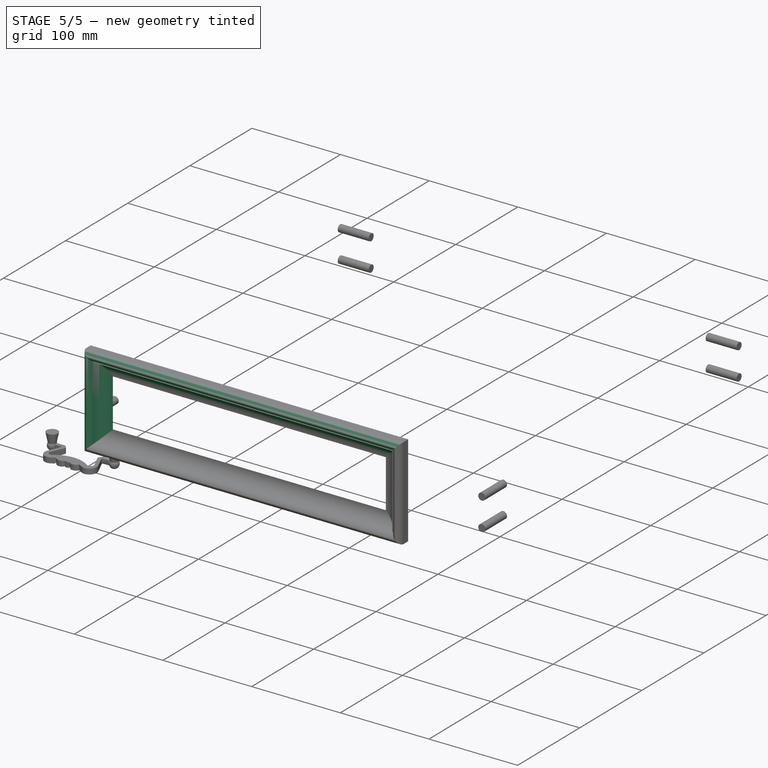
[diagram: stage 5 of 5 — iso view after this stage's code; geometry added in this stage tinted green]
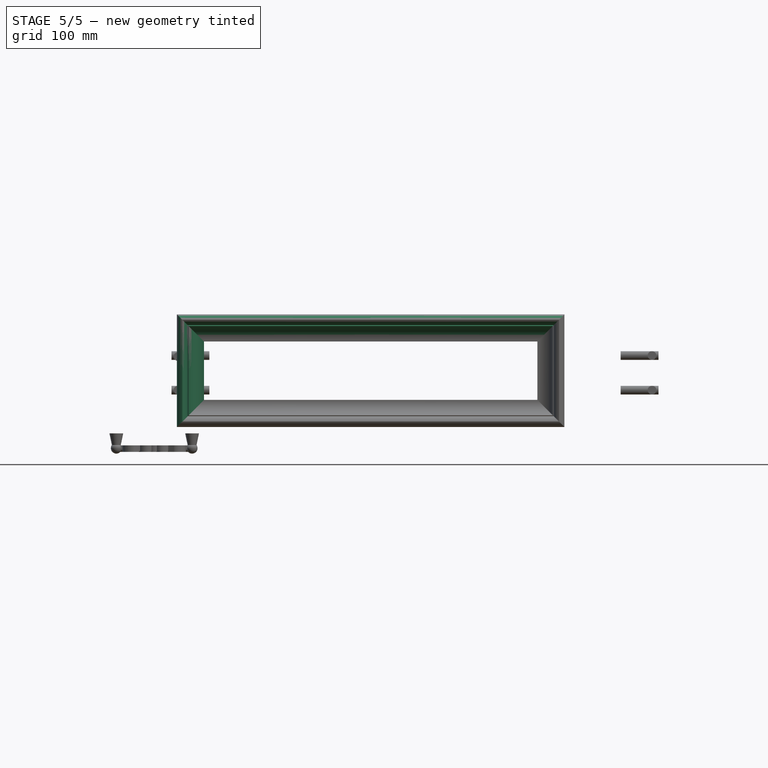
[diagram: stage 5 of 5 — front view after this stage's code; geometry added in this stage tinted green]
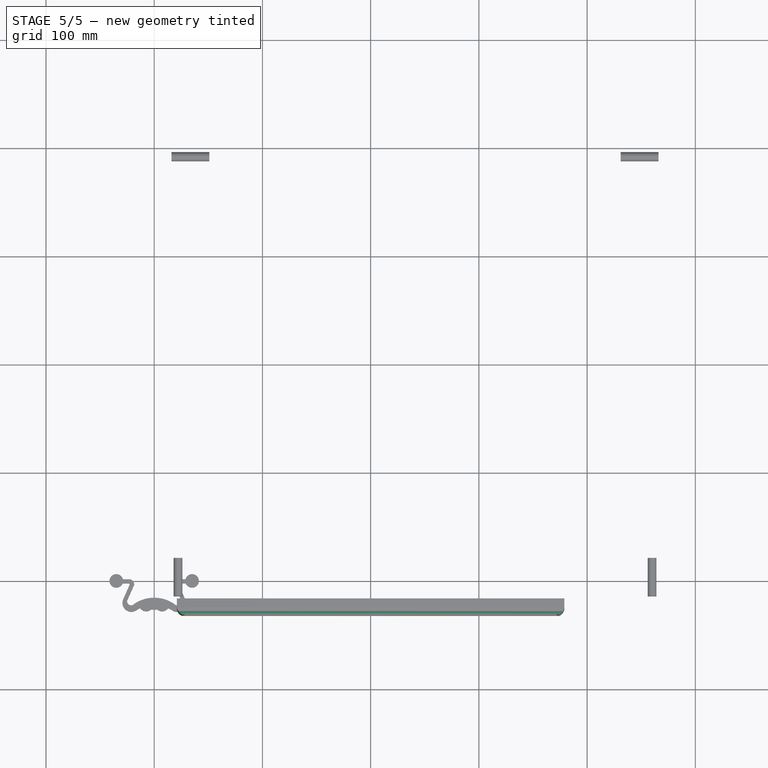
[diagram: stage 5 of 5 — top view after this stage's code; geometry added in this stage tinted green]
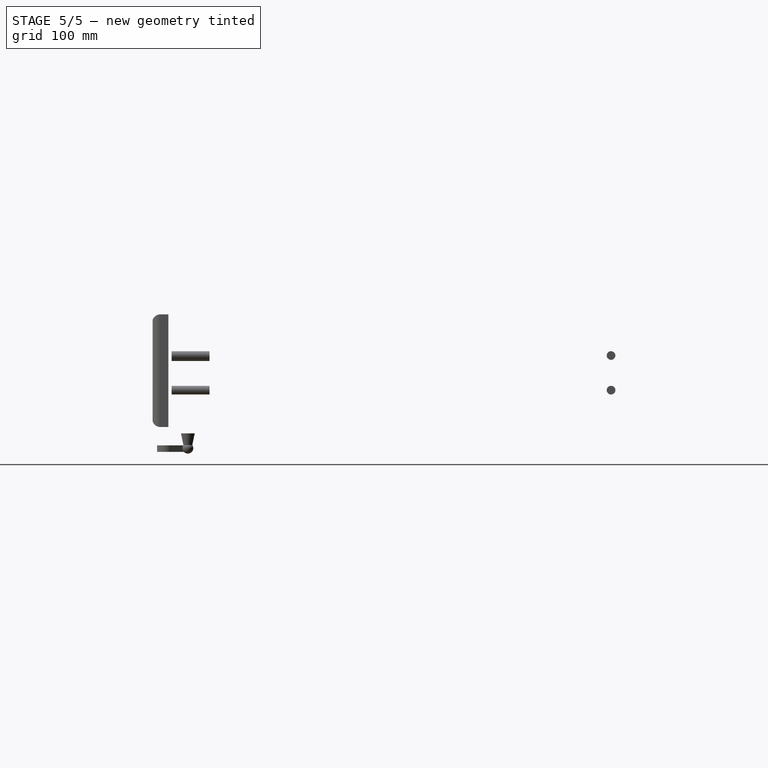
[diagram: stage 5 of 5 — right view after this stage's code; geometry added in this stage tinted green]
FEATURE [Sketcher::SketchObject] Sketch005  label="Pattern, Frame"
  ArcFitTolerance = 0
  AttachmentOffset = pos=(21,23,33) rot=(0,1,0;0rad)
  ExternalTypes = [0]
  FullyConstrained = true
  MakeInternals = false
  MapMode = 5
  Placement = pos=(21,-33,23) rot=(1,0,0;1.5708rad)
  _ExternalGeoVersion = 0
  sketch-geometry (4):
    g0: LineSegment StartX=0 StartY=104 StartZ=0 EndX=25 EndY=104 EndZ=0
    g1: LineSegment StartX=25 StartY=104 StartZ=0 EndX=25 EndY=0 EndZ=0
    g2: LineSegment StartX=25 StartY=0 StartZ=0 EndX=0 EndY=0 EndZ=0
    g3: LineSegment StartX=0 StartY=0 StartZ=0 EndX=0 EndY=104 EndZ=0
  constraints (11):
    c: Coincident(g0,g1)
    c: Coincident(g1,g2)
    c: Coincident(g2,g3)
    c: Coincident(g3,g0)
    c: Horizontal(g0)
    c: Horizontal(g2)
    c: Vertical(g1)
    c: Vertical(g3)
    c: Coincident(g2,g-1)
    c: DistanceX(g0,g0) = 25  'SizeX'
    c: DistanceY(g3,g3) = 104  'SizeY'
FEATURE [PartDesign::Pad] Pad001  label="Frame"
  Direction = (0,-1,2e-16)
  Length = 15
  Length2 = 10
  Placement = pos=(21,-33,23) rot=(1,0,0;1.5708rad)
  Profile = -> Sketch005
  Reversed = true
  SideType = 0
  Suppressed = false
  Type = 0
  Type2 = 0
FEATURE [PartDesign::Chamfer] Frame45Cut
  Angle = 45
  Base = -> Pad001 [Edge2,Edge5]
  BaseFeature = -> Pad001
  ChamferType = 0
  FlipDirection = false
  Placement = pos=(21,-33,23) rot=(1,0,0;1.5708rad)
  Size = 24.99
  Size2 = 1
  SupportTransform = false
  Suppressed = false
  UseAllEdges = false
FEATURE [PartDesign::Chamfer] Frame45Cut001
  Angle = 45
  Base = -> Pad002 [Edge8,Edge5]
  BaseFeature = -> Pad002
  ChamferType = 0
  FlipDirection = false
  Placement = pos=(21,-33,102) rot=(1,0,0;1.5708rad)
  Size = 24.99
  Size2 = 1
  SupportTransform = false
  Suppressed = false
  UseAllEdges = false
FEATURE [Sketcher::SketchObject] routerPattern001
  ArcFitTolerance = 0
  ExternalTypes = [0]
  FullyConstrained = true
  MakeInternals = false
  Placement = pos=(46,-33,75) rot=(0,0,1;0rad)
  _ExternalGeoVersion = 0
  sketch-geometry (1):
    g0: Circle CenterX=0 CenterY=0 CenterZ=0 NormalX=0 NormalY=0 NormalZ=1 AngleXU=0 Radius=15
  constraints (2):
    c: Coincident(g0,g-1)
    c: Radius(g0) = 15
FEATURE [PartDesign::Pocket] router001  label="Cove 001"
  BaseFeature = -> Frame45Cut
  Direction = (0,0,-1)
  Length = 5
  Length2 = 5
  Placement = pos=(21,-33,23) rot=(1,0,0;1.5708rad)
  Profile = -> routerPattern001
  SideType = 2
  Suppressed = false
  Type = 1
  Type2 = 0
FEATURE [Sketcher::SketchObject] routerPattern002
  ArcFitTolerance = 0
  ExternalTypes = [0]
  FullyConstrained = true
  MakeInternals = false
  Placement = pos=(200,-33,102) rot=(0,1,0;1.5708rad)
  _ExternalGeoVersion = 0
  sketch-geometry (1):
    g0: Circle CenterX=0 CenterY=0 CenterZ=0 NormalX=0 NormalY=0 NormalZ=1 AngleXU=0 Radius=15
  constraints (2):
    c: Coincident(g0,g-1)
    c: Radius(g0) = 15
FEATURE [PartDesign::Pocket] router002  label="Cove 002"
  BaseFeature = -> Frame45Cut001
  Direction = (-1,0,-2e-16)
  Length = 5
  Length2 = 5
  Placement = pos=(21,-33,102) rot=(1,0,0;1.5708rad)
  Profile = -> routerPattern002
  SideType = 2
  Suppressed = false
  Type = 1
  Type2 = 0
FEATURE [Sketcher::SketchObject] routerPattern005
  ArcFitTolerance = 0
  ExternalTypes = [0]
  FullyConstrained = true
  MakeInternals = false
  Placement = pos=(31,-33,75) rot=(0,0,1;0rad)
  _ExternalGeoVersion = 0
  sketch-geometry (4):
    g0: ArcOfCircle CenterX=7.50003 CenterY=-7.50003 CenterZ=0 NormalX=0 NormalY=0 NormalZ=1 AngleXU=0 Radius=7.50003 StartAngle=1.5708 EndAngle=3.14159
    g1: ArcOfCircle CenterX=-7.50003 CenterY=7.50003 CenterZ=0 NormalX=0 NormalY=0 NormalZ=1 AngleXU=0 Radius=7.50003 StartAngle=4.71239 EndAngle=6.28319
    g2: ArcOfCircle CenterX=7.50003 CenterY=7.50003 CenterZ=0 NormalX=0 NormalY=0 NormalZ=1 AngleXU=0 Radius=7.50003 StartAngle=3.14159 EndAngle=4.71239
    g3: ArcOfCircle CenterX=-7.50003 CenterY=-7.50003 CenterZ=0 NormalX=0 NormalY=0 NormalZ=1 AngleXU=0 Radius=7.50003 StartAngle=3.61945e-06 EndAngle=1.5708
  constraints (16):
    c: Equal(g3,g1)
    c: Equal(g1,g2)
    c: Equal(g2,g0)
    c: Vertical(g0,g2)
    c: Horizontal(g3,g0)
    c: Vertical(g1,g3)
    c: Horizontal(g1,g2)
    c: Coincident(g1,g2)
    c: Coincident(g0,g2)
    c: Coincident(g3,g0)
    c: Coincident(g3,g1)
    c: PointOnObject(g1,g-1)
    c: PointOnObject(g1,g-2)
    c: DistanceY(g0,g-1) = 7.5
    c: Vertical(g0,g0)
    c: Horizontal(g1,g1)
FEATURE [PartDesign::Pocket] router005  label="RoundOver2 001"
  BaseFeature = -> router001
  Direction = (0,0,-1)
  Length = 5
  Length2 = 5
  Placement = pos=(21,-33,23) rot=(1,0,0;1.5708rad)
  Profile = -> routerPattern005
  SideType = 2
  Suppressed = false
  Type = 1
  Type2 = 0
FEATURE [Sketcher::SketchObject] routerPattern006
  ArcFitTolerance = 0
  ExternalTypes = [0]
  FullyConstrained = true
  MakeInternals = false
  Placement = pos=(200,-33,117) rot=(0,1,0;1.5708rad)
  _ExternalGeoVersion = 0
  sketch-geometry (4):
    g0: ArcOfCircle CenterX=7.50002 CenterY=-7.50002 CenterZ=0 NormalX=0 NormalY=0 NormalZ=1 AngleXU=0 Radius=7.50002 StartAngle=1.5708 EndAngle=3.14159
    g1: ArcOfCircle CenterX=-7.50002 CenterY=7.50002 CenterZ=0 NormalX=0 NormalY=0 NormalZ=1 AngleXU=0 Radius=7.50002 StartAngle=4.71239 EndAngle=6.28319
    g2: ArcOfCircle CenterX=7.50002 CenterY=7.50002 CenterZ=0 NormalX=0 NormalY=0 NormalZ=1 AngleXU=0 Radius=7.50002 StartAngle=3.14159 EndAngle=4.71239
    g3: ArcOfCircle CenterX=-7.50002 CenterY=-7.50002 CenterZ=0 NormalX=0 NormalY=0 NormalZ=1 AngleXU=0 Radius=7.50002 StartAngle=2.36025e-06 EndAngle=1.5708
  constraints (16):
    c: Equal(g3,g1)
    c: Equal(g1,g2)
    c: Equal(g2,g0)
    c: Vertical(g0,g2)
    c: Horizontal(g3,g0)
    c: Vertical(g1,g3)
    c: Horizontal(g1,g2)
    c: Coincident(g1,g2)
    c: Coincident(g0,g2)
    c: Coincident(g3,g0)
    c: Coincident(g3,g1)
    c: PointOnObject(g1,g-1)
    c: PointOnObject(g1,g-2)
    c: DistanceY(g0,g-1) = 7.5
    c: Vertical(g0,g0)
    c: Horizontal(g1,g1)
FEATURE [PartDesign::Pocket] router006  label="RoundOver2 002"
  BaseFeature = -> router002
  Direction = (-1,0,-2e-16)
  Length = 5
  Length2 = 5
  Placement = pos=(21,-33,102) rot=(1,0,0;1.5708rad)
  Profile = -> routerPattern006
  SideType = 2
  Suppressed = false
  Type = 1
  Type2 = 0
FEATURE [Sketcher::SketchObject] routerPattern008
  ArcFitTolerance = 0
  ExternalTypes = [0]
  FullyConstrained = true
  MakeInternals = false
  Placement = pos=(21,-33,75) rot=(0,0,1;0rad)
  _ExternalGeoVersion = 0
  sketch-geometry (4):
    g0: ArcOfCircle CenterX=7.50002 CenterY=-7.50002 CenterZ=0 NormalX=0 NormalY=0 NormalZ=1 AngleXU=0 Radius=7.50002 StartAngle=1.5708 EndAngle=3.14159
    g1: ArcOfCircle CenterX=-7.50002 CenterY=7.50002 CenterZ=0 NormalX=0 NormalY=0 NormalZ=1 AngleXU=0 Radius=7.50002 StartAngle=4.71239 EndAngle=6.28319
    g2: ArcOfCircle CenterX=7.50002 CenterY=7.50002 CenterZ=0 NormalX=0 NormalY=0 NormalZ=1 AngleXU=0 Radius=7.50002 StartAngle=3.14159 EndAngle=4.71239
    g3: ArcOfCircle CenterX=-7.50002 CenterY=-7.50002 CenterZ=0 NormalX=0 NormalY=0 NormalZ=1 AngleXU=0 Radius=7.50002 StartAngle=2.46945e-06 EndAngle=1.5708
  constraints (16):
    c: Equal(g3,g1)
    c: Equal(g1,g2)
    c: Equal(g2,g0)
    c: Vertical(g0,g2)
    c: Horizontal(g3,g0)
    c: Vertical(g1,g3)
    c: Horizontal(g1,g2)
    c: Coincident(g1,g2)
    c: Coincident(g0,g2)
    c: Coincident(g3,g0)
    c: Coincident(g3,g1)
    c: PointOnObject(g1,g-1)
    c: PointOnObject(g1,g-2)
    c: DistanceY(g0,g-1) = 7.5
    c: Vertical(g0,g0)
    c: Horizontal(g1,g1)
FEATURE [PartDesign::Pocket] router008  label="RoundOver2 004"
  BaseFeature = -> router005
  Direction = (0,0,-1)
  Length = 5
  Length2 = 5
  Placement = pos=(21,-33,23) rot=(1,0,0;1.5708rad)
  Profile = -> routerPattern008
  SideType = 2
  Suppressed = false
  Type = 1
  Type2 = 0
FEATURE [PartDesign::Body] Body001  label="Body, Frame"
  AllowCompound = true
  Group = -> [Sketch005,Pad001,Frame45Cut,routerPattern001,router001,routerPattern005,router005,routerPattern008,router008]
  Origin = -> Origin003
  Tip = -> router008
FEATURE [App::Part] Part001  label="Decoration Left"
  Group = -> [Body001]
  Origin = -> Origin002
  Placement = pos=(41,0,0) rot=(0,0,1;0rad)
  expr: .Placement.Base.x = DrawerFrontOutside.Shape.Faces[2].CenterOfMass.x - 200
  expr: .Placement.Base.y = DrawerFrontOutside.Shape.Faces[2].CenterOfMass.y + 18
  expr: .Placement.Base.z = DrawerFrontOutside.Shape.Faces[2].CenterOfMass.z - 75
FEATURE [Sketcher::SketchObject] routerPattern009
  ArcFitTolerance = 0
  ExternalTypes = [0]
  FullyConstrained = true
  MakeInternals = false
  Placement = pos=(200,-33,127) rot=(0,1,0;1.5708rad)
  _ExternalGeoVersion = 0
  sketch-geometry (4):
    g0: ArcOfCircle CenterX=7.50002 CenterY=-7.50002 CenterZ=0 NormalX=0 NormalY=0 NormalZ=1 AngleXU=0 Radius=7.50002 StartAngle=1.5708 EndAngle=3.14159
    g1: ArcOfCircle CenterX=-7.50002 CenterY=7.50002 CenterZ=0 NormalX=0 NormalY=0 NormalZ=1 AngleXU=0 Radius=7.50002 StartAngle=4.71239 EndAngle=6.28319
    g2: ArcOfCircle CenterX=7.50002 CenterY=7.50002 CenterZ=0 NormalX=0 NormalY=0 NormalZ=1 AngleXU=0 Radius=7.50002 StartAngle=3.14159 EndAngle=4.71239
    g3: ArcOfCircle CenterX=-7.50002 CenterY=-7.50002 CenterZ=0 NormalX=0 NormalY=0 NormalZ=1 AngleXU=0 Radius=7.50002 StartAngle=2.23483e-06 EndAngle=1.5708
  constraints (16):
    c: Equal(g3,g1)
    c: Equal(g1,g2)
    c: Equal(g2,g0)
    c: Vertical(g0,g2)
    c: Horizontal(g3,g0)
    c: Vertical(g1,g3)
    c: Horizontal(g1,g2)
    c: Coincident(g1,g2)
    c: Coincident(g0,g2)
    c: Coincident(g3,g0)
    c: Coincident(g3,g1)
    c: PointOnObject(g1,g-1)
    c: PointOnObject(g1,g-2)
    c: DistanceY(g0,g-1) = 7.5
    c: Vertical(g0,g0)
    c: Horizontal(g1,g1)
FEATURE [PartDesign::Pocket] router009  label="RoundOver2 005"
  BaseFeature = -> router006
  Direction = (-1,0,-2e-16)
  Length = 5
  Length2 = 5
  Placement = pos=(21,-33,102) rot=(1,0,0;1.5708rad)
  Profile = -> routerPattern009
  SideType = 2
  Suppressed = false
  Type = 1
  Type2 = 0
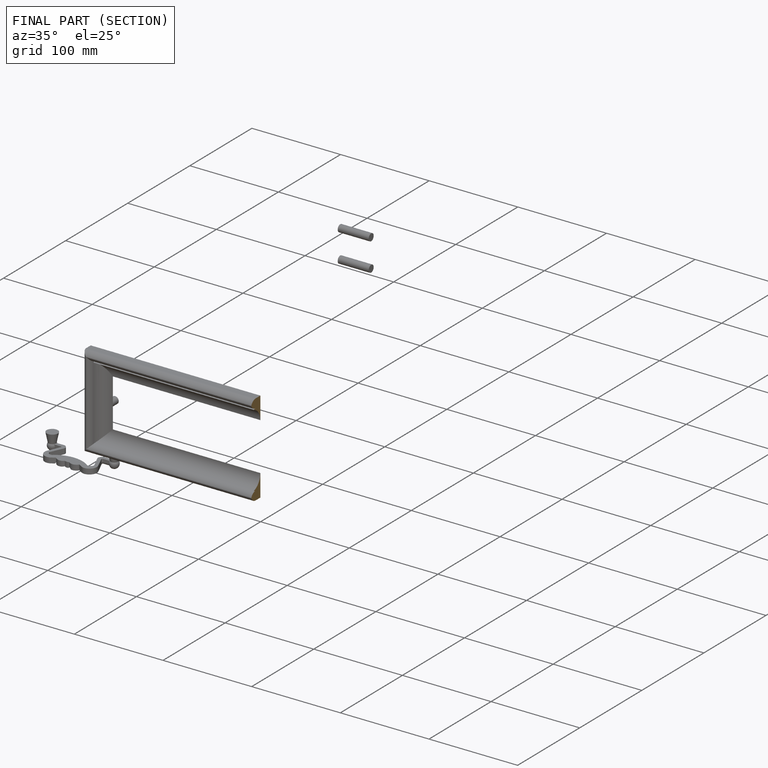
[diagram: finished part — half-section view (interior)]
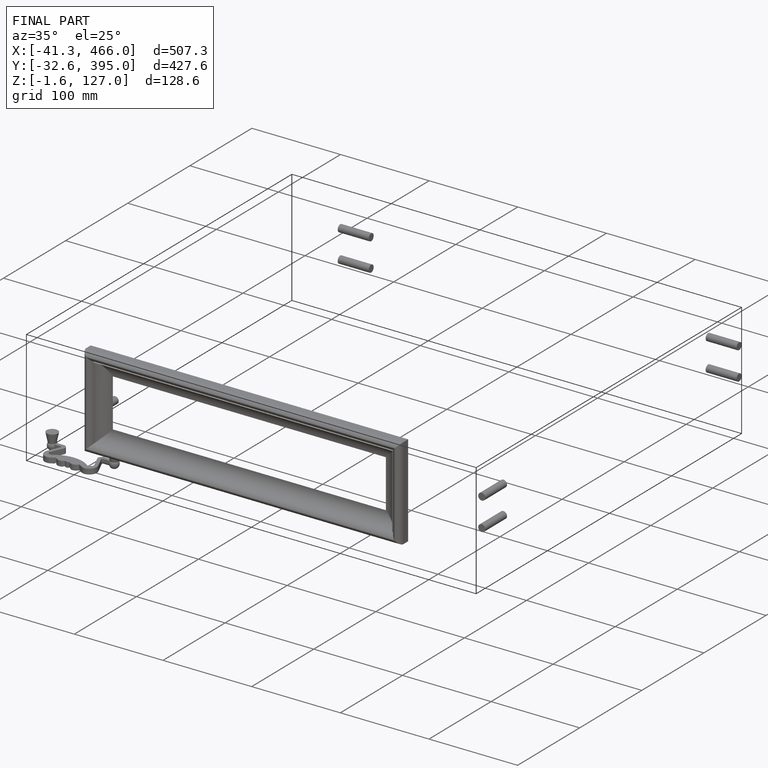
[diagram: finished part — iso view with bounding-box wireframe]
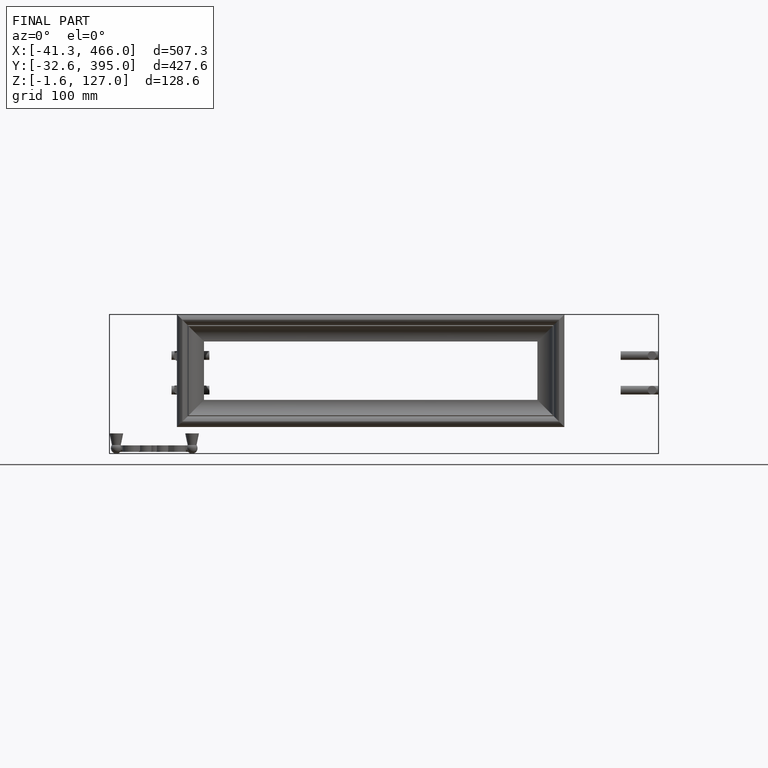
[diagram: finished part — front view with bounding-box wireframe]
